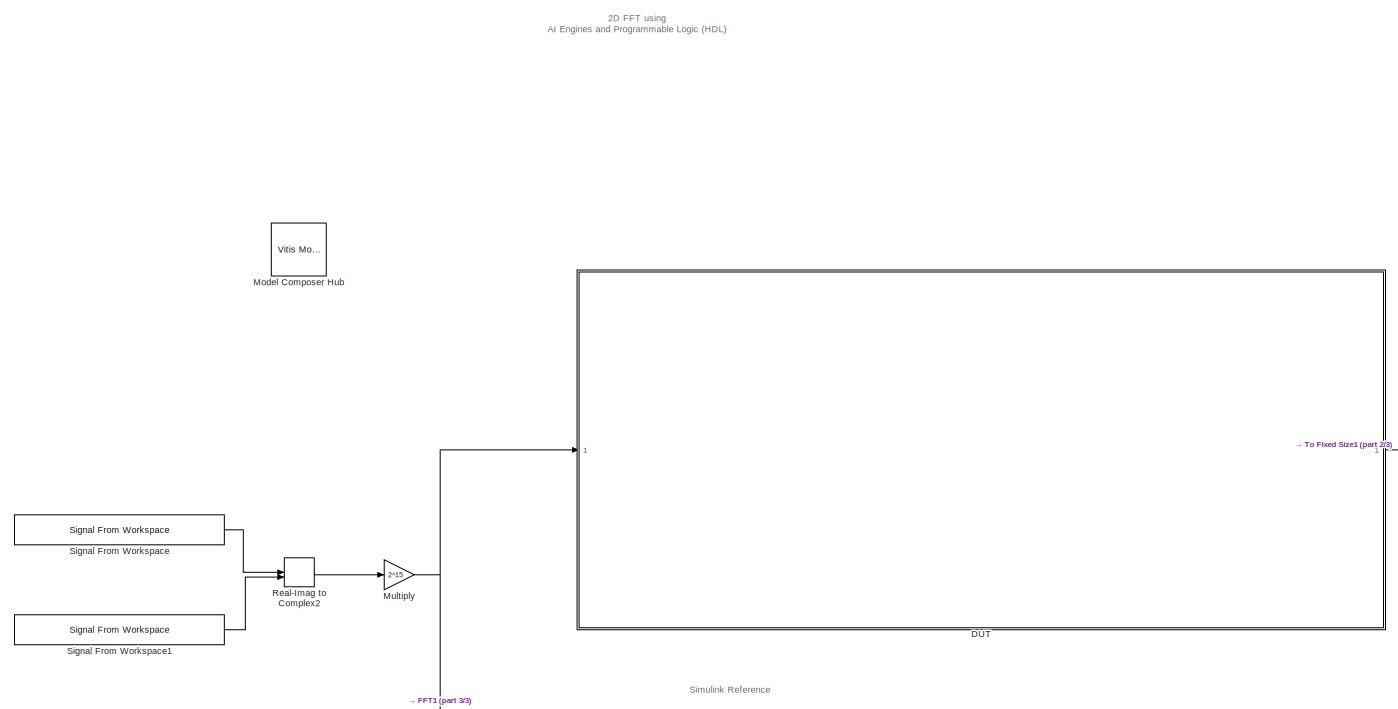
[diagram: root canvas - part 1/3, left side, full height]
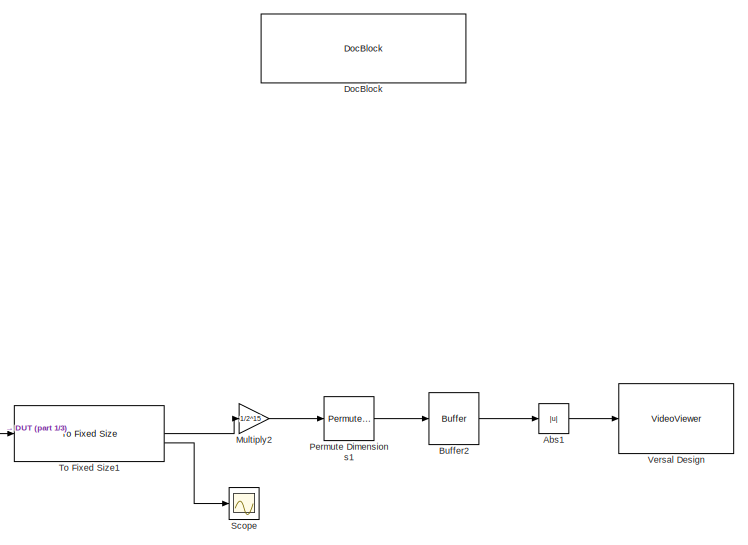
[diagram: root canvas - part 2/3, middle right region]
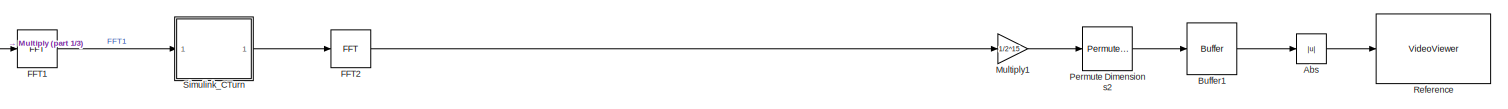
[diagram: root canvas - part 3/3, bottom center region]
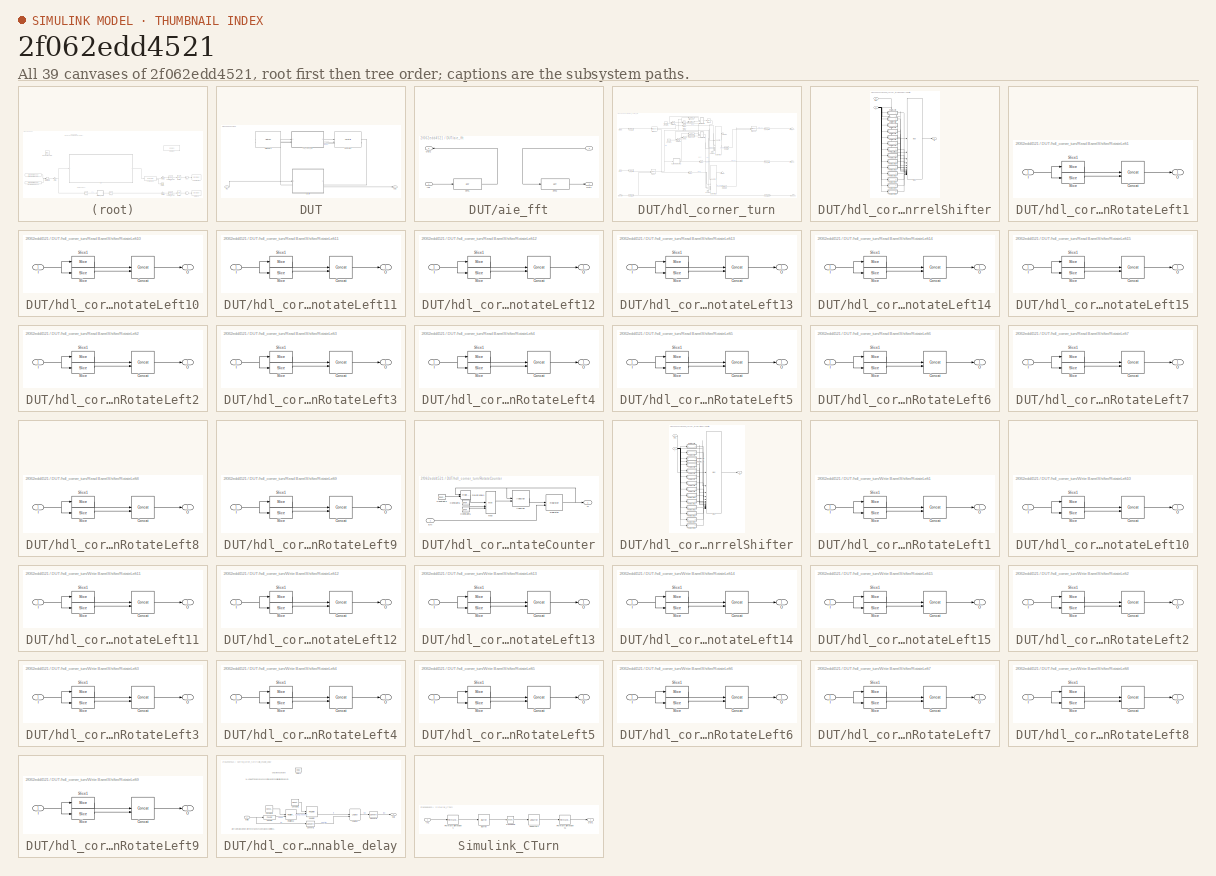
[diagram: thumbnail index - all 39 canvases of the model, root first then tree order]
MODEL slx_2f062edd4521
KIND model
CONFIG AbsTol = auto
CONFIG EnableMultiTasking = off
CONFIG FixedStep = auto
CONFIG InitFcn = xlEvaluateHDLBlocks('XMC_FFT2D_HDL_AIE')
CONFIG MaxStep = auto
CONFIG MinStep = auto
CONFIG PreLoadFcn = MRIDemo_PreloadFcn;\n\n% configure hardware specifics information\nclock_frequency = 150e6;\n\n% corner bender info\nclk = clock_frequency; %Hz\nTclk = 1/clk;\nL2M = 8; % L2M=log2(M)\nL2N = 8; % L2N=log2(N)\nM = 2^L2M;\nN = 2^L2N;\nSSR = 1;\n
CONFIG RelTol = 1e-3
CONFIG SampleTimeConstraint = Unconstrained
CONFIG SolverName = FixedStepDiscrete
CONFIG StartTime = 0.0
CONFIG StopTime = 256*256*2
BLOCK [Abs] Abs
  SaturateOnIntegerOverflow = off
BLOCK [Abs] Abs1
  SaturateOnIntegerOverflow = off
BLOCK [Buffer] Buffer1
  N = 256
  OutputFrames = off
BLOCK [Buffer] Buffer2
  N = 256
  OutputFrames = off
BLOCK [SubSystem] DUT
BLOCK [Reference] DUT/AIE to HDL1  REF=aieUtilities/AIE to HDL
  SourceBlock = aieUtilities/AIE to HDL
  SourceType = AIE to HDL
BLOCK [Reference] DUT/HDL to AIE1  REF=aieUtilities/HDL to AIE
  SourceBlock = aieUtilities/HDL to AIE
  SourceType = HDL to AIE
BLOCK [Inport] DUT/In1
BLOCK [Outport] DUT/Out1
BLOCK [SubSystem] DUT/aie_fft
  PortSchema = {"entries":[{"content":{"sides":[{"content":{"connectorIds":["Out2","In1"]},"type":"ConnectorPlacement.EquallySpacedRectSide","uuid":"ba116f73-e116-40b3-b2e5-304cba4df7e1"},{"content":{"connectorIds":["In2","Out1"],"side":"RIGHT"},"type":"ConnectorPlacement.EquallySpacedRectSide","uuid":"f8ace37c-ffb0-4f56-a1b3-7eeef7565cfd"},{"content":{"connectorIds":[],"side":"TOP"},"type":"ConnectorPlacement.E...<+253ch>
BLOCK [Inport] DUT/aie_fft/ 
  NameLocation = top
  Port = 2
BLOCK [Reference] DUT/aie_fft/FFT1  REF=aieDSP/FFT
  SourceBlock = aieDSP/FFT
  SourceType = FFT
BLOCK [Reference] DUT/aie_fft/FFT2  REF=aieDSP/FFT
  SourceBlock = aieDSP/FFT
  SourceType = FFT
BLOCK [Inport] DUT/aie_fft/In2
BLOCK [Outport] DUT/aie_fft/Out1
  NameLocation = top
  Port = 2
BLOCK [Outport] DUT/aie_fft/Out2
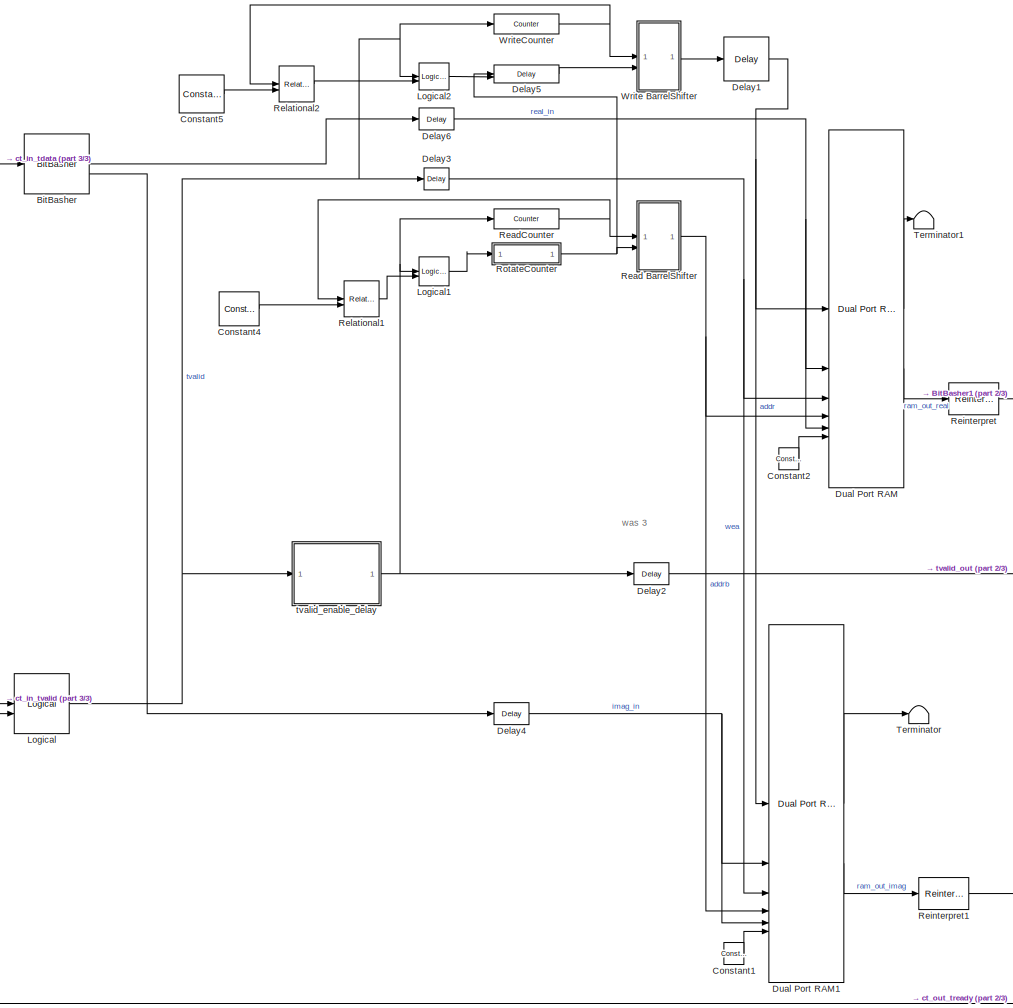
[diagram: DUT/hdl_corner_turn - part 1/3, center side, full height]
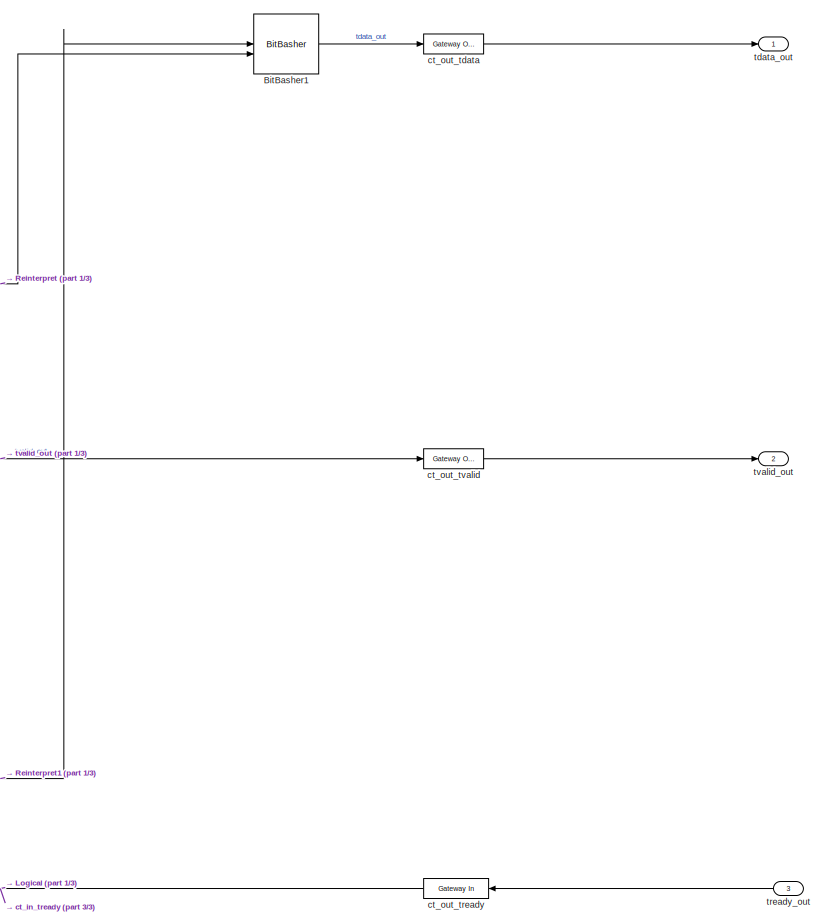
[diagram: DUT/hdl_corner_turn - part 2/3, right side, full height]
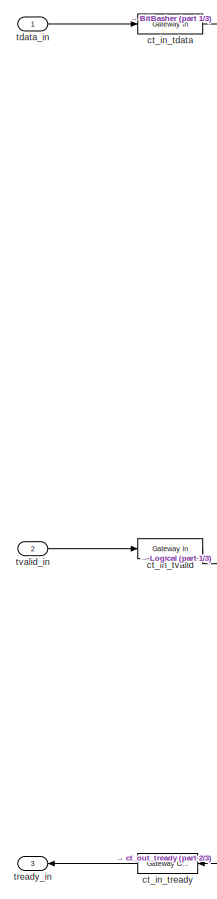
[diagram: DUT/hdl_corner_turn - part 3/3, left side, full height]
BLOCK [SubSystem] DUT/hdl_corner_turn
  PortSchema = {"entries":[{"content":{"sides":[{"content":{"connectorIds":["In1","In2","Out3"]},"type":"ConnectorPlacement.EquallySpacedRectSide","uuid":"096cfc4a-45cf-495e-9dad-5ec39c034de1"},{"content":{"connectorIds":["Out1","Out2","In3"],"side":"RIGHT"},"type":"ConnectorPlacement.EquallySpacedRectSide","uuid":"c2f58c53-17c1-4e0f-8fe6-4ca31b4ae7e7"},{"content":{"connectorIds":[],"side":"TOP"},"type":"Connect...<+266ch>
BLOCK [Reference] DUT/hdl_corner_turn/BitBasher  REF=hdlBasic/BitBasher
  SourceBlock = hdlBasic/BitBasher
  SourceType = BitBasher Block
BLOCK [Reference] DUT/hdl_corner_turn/BitBasher1  REF=hdlBasic/BitBasher
  SourceBlock = hdlBasic/BitBasher
  SourceType = BitBasher Block
BLOCK [Reference] DUT/hdl_corner_turn/Constant1  REF=hdlBasic/Constant
  SourceBlock = hdlBasic/Constant
  SourceType = Constant Block Block
BLOCK [Reference] DUT/hdl_corner_turn/Constant2  REF=hdlBasic/Constant
  SourceBlock = hdlBasic/Constant
  SourceType = Constant Block Block
BLOCK [Reference] DUT/hdl_corner_turn/Constant4  REF=hdlBasic/Constant
  SourceBlock = hdlBasic/Constant
  SourceType = Constant Block Block
BLOCK [Reference] DUT/hdl_corner_turn/Constant5  REF=hdlBasic/Constant
  SourceBlock = hdlBasic/Constant
  SourceType = Constant Block Block
BLOCK [Reference] DUT/hdl_corner_turn/Delay1  REF=hdlBasic/Delay
  SourceBlock = hdlBasic/Delay
  SourceType = Delay Block
BLOCK [Reference] DUT/hdl_corner_turn/Delay2  REF=hdlBasic/Delay
  SourceBlock = hdlBasic/Delay
  SourceType = Delay Block
BLOCK [Reference] DUT/hdl_corner_turn/Delay3  REF=hdlBasic/Delay
  SourceBlock = hdlBasic/Delay
  SourceType = Delay Block
BLOCK [Reference] DUT/hdl_corner_turn/Delay4  REF=hdlBasic/Delay
  SourceBlock = hdlBasic/Delay
  SourceType = Delay Block
BLOCK [Reference] DUT/hdl_corner_turn/Delay5  REF=hdlBasic/Delay
  SourceBlock = hdlBasic/Delay
  SourceType = Delay Block
BLOCK [Reference] DUT/hdl_corner_turn/Delay6  REF=hdlBasic/Delay
  SourceBlock = hdlBasic/Delay
  SourceType = Delay Block
BLOCK [Reference] DUT/hdl_corner_turn/Dual Port RAM  REF=hdlBasic/Dual Port RAM
  SourceBlock = hdlBasic/Dual Port RAM
  SourceType = Dual Port Random Access Memory Block
BLOCK [Reference] DUT/hdl_corner_turn/Dual Port RAM1  REF=hdlBasic/Dual Port RAM
  SourceBlock = hdlBasic/Dual Port RAM
  SourceType = Dual Port Random Access Memory Block
BLOCK [Reference] DUT/hdl_corner_turn/Logical  REF=hdlBasic/Logical
  SourceBlock = hdlBasic/Logical
  SourceType = Logical Block Block
BLOCK [Reference] DUT/hdl_corner_turn/Logical1  REF=hdlBasic/Logical
  SourceBlock = hdlBasic/Logical
  SourceType = Logical Block Block
BLOCK [Reference] DUT/hdl_corner_turn/Logical2  REF=hdlBasic/Logical
  SourceBlock = hdlBasic/Logical
  SourceType = Logical Block Block
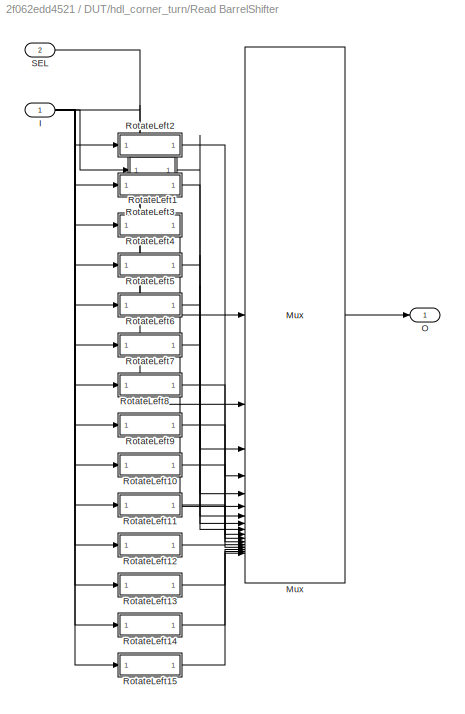
BLOCK [SubSystem] DUT/hdl_corner_turn/Read BarrelShifter
BLOCK [Inport] DUT/hdl_corner_turn/Read BarrelShifter/I
BLOCK [Reference] DUT/hdl_corner_turn/Read BarrelShifter/Mux  REF=hdlBasic/Mux
  SourceBlock = hdlBasic/Mux
  SourceType = Bus Multiplexer Block
BLOCK [Outport] DUT/hdl_corner_turn/Read BarrelShifter/O
BLOCK [SubSystem] DUT/hdl_corner_turn/Read BarrelShifter/RotateLeft1
BLOCK [Reference] DUT/hdl_corner_turn/Read BarrelShifter/RotateLeft1/Concat  REF=hdlBasic/Concat
  SourceBlock = hdlBasic/Concat
  SourceType = Bus Concatenator Block
BLOCK [Inport] DUT/hdl_corner_turn/Read BarrelShifter/RotateLeft1/I
BLOCK [Outport] DUT/hdl_corner_turn/Read BarrelShifter/RotateLeft1/O
BLOCK [Reference] DUT/hdl_corner_turn/Read BarrelShifter/RotateLeft1/Slice  REF=hdlBasic/Slice
  SourceBlock = hdlBasic/Slice
  SourceType = Bit Slice Extractor Block
BLOCK [Reference] DUT/hdl_corner_turn/Read BarrelShifter/RotateLeft1/Slice1  REF=hdlBasic/Slice
  SourceBlock = hdlBasic/Slice
  SourceType = Bit Slice Extractor Block
BLOCK [SubSystem] DUT/hdl_corner_turn/Read BarrelShifter/RotateLeft10
BLOCK [Reference] DUT/hdl_corner_turn/Read BarrelShifter/RotateLeft10/Concat  REF=hdlBasic/Concat
  SourceBlock = hdlBasic/Concat
  SourceType = Bus Concatenator Block
BLOCK [Inport] DUT/hdl_corner_turn/Read BarrelShifter/RotateLeft10/I
BLOCK [Outport] DUT/hdl_corner_turn/Read BarrelShifter/RotateLeft10/O
BLOCK [Reference] DUT/hdl_corner_turn/Read BarrelShifter/RotateLeft10/Slice  REF=hdlBasic/Slice
  SourceBlock = hdlBasic/Slice
  SourceType = Bit Slice Extractor Block
BLOCK [Reference] DUT/hdl_corner_turn/Read BarrelShifter/RotateLeft10/Slice1  REF=hdlBasic/Slice
  SourceBlock = hdlBasic/Slice
  SourceType = Bit Slice Extractor Block
BLOCK [SubSystem] DUT/hdl_corner_turn/Read BarrelShifter/RotateLeft11
BLOCK [Reference] DUT/hdl_corner_turn/Read BarrelShifter/RotateLeft11/Concat  REF=hdlBasic/Concat
  SourceBlock = hdlBasic/Concat
  SourceType = Bus Concatenator Block
BLOCK [Inport] DUT/hdl_corner_turn/Read BarrelShifter/RotateLeft11/I
BLOCK [Outport] DUT/hdl_corner_turn/Read BarrelShifter/RotateLeft11/O
BLOCK [Reference] DUT/hdl_corner_turn/Read BarrelShifter/RotateLeft11/Slice  REF=hdlBasic/Slice
  SourceBlock = hdlBasic/Slice
  SourceType = Bit Slice Extractor Block
BLOCK [Reference] DUT/hdl_corner_turn/Read BarrelShifter/RotateLeft11/Slice1  REF=hdlBasic/Slice
  SourceBlock = hdlBasic/Slice
  SourceType = Bit Slice Extractor Block
BLOCK [SubSystem] DUT/hdl_corner_turn/Read BarrelShifter/RotateLeft12
BLOCK [Reference] DUT/hdl_corner_turn/Read BarrelShifter/RotateLeft12/Concat  REF=hdlBasic/Concat
  SourceBlock = hdlBasic/Concat
  SourceType = Bus Concatenator Block
BLOCK [Inport] DUT/hdl_corner_turn/Read BarrelShifter/RotateLeft12/I
BLOCK [Outport] DUT/hdl_corner_turn/Read BarrelShifter/RotateLeft12/O
BLOCK [Reference] DUT/hdl_corner_turn/Read BarrelShifter/RotateLeft12/Slice  REF=hdlBasic/Slice
  SourceBlock = hdlBasic/Slice
  SourceType = Bit Slice Extractor Block
BLOCK [Reference] DUT/hdl_corner_turn/Read BarrelShifter/RotateLeft12/Slice1  REF=hdlBasic/Slice
  SourceBlock = hdlBasic/Slice
  SourceType = Bit Slice Extractor Block
BLOCK [SubSystem] DUT/hdl_corner_turn/Read BarrelShifter/RotateLeft13
BLOCK [Reference] DUT/hdl_corner_turn/Read BarrelShifter/RotateLeft13/Concat  REF=hdlBasic/Concat
  SourceBlock = hdlBasic/Concat
  SourceType = Bus Concatenator Block
BLOCK [Inport] DUT/hdl_corner_turn/Read BarrelShifter/RotateLeft13/I
BLOCK [Outport] DUT/hdl_corner_turn/Read BarrelShifter/RotateLeft13/O
BLOCK [Reference] DUT/hdl_corner_turn/Read BarrelShifter/RotateLeft13/Slice  REF=hdlBasic/Slice
  SourceBlock = hdlBasic/Slice
  SourceType = Bit Slice Extractor Block
BLOCK [Reference] DUT/hdl_corner_turn/Read BarrelShifter/RotateLeft13/Slice1  REF=hdlBasic/Slice
  SourceBlock = hdlBasic/Slice
  SourceType = Bit Slice Extractor Block
BLOCK [SubSystem] DUT/hdl_corner_turn/Read BarrelShifter/RotateLeft14
BLOCK [Reference] DUT/hdl_corner_turn/Read BarrelShifter/RotateLeft14/Concat  REF=hdlBasic/Concat
  SourceBlock = hdlBasic/Concat
  SourceType = Bus Concatenator Block
BLOCK [Inport] DUT/hdl_corner_turn/Read BarrelShifter/RotateLeft14/I
BLOCK [Outport] DUT/hdl_corner_turn/Read BarrelShifter/RotateLeft14/O
BLOCK [Reference] DUT/hdl_corner_turn/Read BarrelShifter/RotateLeft14/Slice  REF=hdlBasic/Slice
  SourceBlock = hdlBasic/Slice
  SourceType = Bit Slice Extractor Block
BLOCK [Reference] DUT/hdl_corner_turn/Read BarrelShifter/RotateLeft14/Slice1  REF=hdlBasic/Slice
  SourceBlock = hdlBasic/Slice
  SourceType = Bit Slice Extractor Block
BLOCK [SubSystem] DUT/hdl_corner_turn/Read BarrelShifter/RotateLeft15
BLOCK [Reference] DUT/hdl_corner_turn/Read BarrelShifter/RotateLeft15/Concat  REF=hdlBasic/Concat
  SourceBlock = hdlBasic/Concat
  SourceType = Bus Concatenator Block
BLOCK [Inport] DUT/hdl_corner_turn/Read BarrelShifter/RotateLeft15/I
BLOCK [Outport] DUT/hdl_corner_turn/Read BarrelShifter/RotateLeft15/O
BLOCK [Reference] DUT/hdl_corner_turn/Read BarrelShifter/RotateLeft15/Slice  REF=hdlBasic/Slice
  SourceBlock = hdlBasic/Slice
  SourceType = Bit Slice Extractor Block
BLOCK [Reference] DUT/hdl_corner_turn/Read BarrelShifter/RotateLeft15/Slice1  REF=hdlBasic/Slice
  SourceBlock = hdlBasic/Slice
  SourceType = Bit Slice Extractor Block
BLOCK [SubSystem] DUT/hdl_corner_turn/Read BarrelShifter/RotateLeft2
BLOCK [Reference] DUT/hdl_corner_turn/Read BarrelShifter/RotateLeft2/Concat  REF=hdlBasic/Concat
  SourceBlock = hdlBasic/Concat
  SourceType = Bus Concatenator Block
BLOCK [Inport] DUT/hdl_corner_turn/Read BarrelShifter/RotateLeft2/I
BLOCK [Outport] DUT/hdl_corner_turn/Read BarrelShifter/RotateLeft2/O
BLOCK [Reference] DUT/hdl_corner_turn/Read BarrelShifter/RotateLeft2/Slice  REF=hdlBasic/Slice
  SourceBlock = hdlBasic/Slice
  SourceType = Bit Slice Extractor Block
BLOCK [Reference] DUT/hdl_corner_turn/Read BarrelShifter/RotateLeft2/Slice1  REF=hdlBasic/Slice
  SourceBlock = hdlBasic/Slice
  SourceType = Bit Slice Extractor Block
BLOCK [SubSystem] DUT/hdl_corner_turn/Read BarrelShifter/RotateLeft3
BLOCK [Reference] DUT/hdl_corner_turn/Read BarrelShifter/RotateLeft3/Concat  REF=hdlBasic/Concat
  SourceBlock = hdlBasic/Concat
  SourceType = Bus Concatenator Block
BLOCK [Inport] DUT/hdl_corner_turn/Read BarrelShifter/RotateLeft3/I
BLOCK [Outport] DUT/hdl_corner_turn/Read BarrelShifter/RotateLeft3/O
BLOCK [Reference] DUT/hdl_corner_turn/Read BarrelShifter/RotateLeft3/Slice  REF=hdlBasic/Slice
  SourceBlock = hdlBasic/Slice
  SourceType = Bit Slice Extractor Block
BLOCK [Reference] DUT/hdl_corner_turn/Read BarrelShifter/RotateLeft3/Slice1  REF=hdlBasic/Slice
  SourceBlock = hdlBasic/Slice
  SourceType = Bit Slice Extractor Block
BLOCK [SubSystem] DUT/hdl_corner_turn/Read BarrelShifter/RotateLeft4
BLOCK [Reference] DUT/hdl_corner_turn/Read BarrelShifter/RotateLeft4/Concat  REF=hdlBasic/Concat
  SourceBlock = hdlBasic/Concat
  SourceType = Bus Concatenator Block
BLOCK [Inport] DUT/hdl_corner_turn/Read BarrelShifter/RotateLeft4/I
BLOCK [Outport] DUT/hdl_corner_turn/Read BarrelShifter/RotateLeft4/O
BLOCK [Reference] DUT/hdl_corner_turn/Read BarrelShifter/RotateLeft4/Slice  REF=hdlBasic/Slice
  SourceBlock = hdlBasic/Slice
  SourceType = Bit Slice Extractor Block
BLOCK [Reference] DUT/hdl_corner_turn/Read BarrelShifter/RotateLeft4/Slice1  REF=hdlBasic/Slice
  SourceBlock = hdlBasic/Slice
  SourceType = Bit Slice Extractor Block
BLOCK [SubSystem] DUT/hdl_corner_turn/Read BarrelShifter/RotateLeft5
BLOCK [Reference] DUT/hdl_corner_turn/Read BarrelShifter/RotateLeft5/Concat  REF=hdlBasic/Concat
  SourceBlock = hdlBasic/Concat
  SourceType = Bus Concatenator Block
BLOCK [Inport] DUT/hdl_corner_turn/Read BarrelShifter/RotateLeft5/I
BLOCK [Outport] DUT/hdl_corner_turn/Read BarrelShifter/RotateLeft5/O
BLOCK [Reference] DUT/hdl_corner_turn/Read BarrelShifter/RotateLeft5/Slice  REF=hdlBasic/Slice
  SourceBlock = hdlBasic/Slice
  SourceType = Bit Slice Extractor Block
BLOCK [Reference] DUT/hdl_corner_turn/Read BarrelShifter/RotateLeft5/Slice1  REF=hdlBasic/Slice
  SourceBlock = hdlBasic/Slice
  SourceType = Bit Slice Extractor Block
BLOCK [SubSystem] DUT/hdl_corner_turn/Read BarrelShifter/RotateLeft6
BLOCK [Reference] DUT/hdl_corner_turn/Read BarrelShifter/RotateLeft6/Concat  REF=hdlBasic/Concat
  SourceBlock = hdlBasic/Concat
  SourceType = Bus Concatenator Block
BLOCK [Inport] DUT/hdl_corner_turn/Read BarrelShifter/RotateLeft6/I
BLOCK [Outport] DUT/hdl_corner_turn/Read BarrelShifter/RotateLeft6/O
BLOCK [Reference] DUT/hdl_corner_turn/Read BarrelShifter/RotateLeft6/Slice  REF=hdlBasic/Slice
  SourceBlock = hdlBasic/Slice
  SourceType = Bit Slice Extractor Block
BLOCK [Reference] DUT/hdl_corner_turn/Read BarrelShifter/RotateLeft6/Slice1  REF=hdlBasic/Slice
  SourceBlock = hdlBasic/Slice
  SourceType = Bit Slice Extractor Block
BLOCK [SubSystem] DUT/hdl_corner_turn/Read BarrelShifter/RotateLeft7
BLOCK [Reference] DUT/hdl_corner_turn/Read BarrelShifter/RotateLeft7/Concat  REF=hdlBasic/Concat
  SourceBlock = hdlBasic/Concat
  SourceType = Bus Concatenator Block
BLOCK [Inport] DUT/hdl_corner_turn/Read BarrelShifter/RotateLeft7/I
BLOCK [Outport] DUT/hdl_corner_turn/Read BarrelShifter/RotateLeft7/O
BLOCK [Reference] DUT/hdl_corner_turn/Read BarrelShifter/RotateLeft7/Slice  REF=hdlBasic/Slice
  SourceBlock = hdlBasic/Slice
  SourceType = Bit Slice Extractor Block
BLOCK [Reference] DUT/hdl_corner_turn/Read BarrelShifter/RotateLeft7/Slice1  REF=hdlBasic/Slice
  SourceBlock = hdlBasic/Slice
  SourceType = Bit Slice Extractor Block
BLOCK [SubSystem] DUT/hdl_corner_turn/Read BarrelShifter/RotateLeft8
BLOCK [Reference] DUT/hdl_corner_turn/Read BarrelShifter/RotateLeft8/Concat  REF=hdlBasic/Concat
  SourceBlock = hdlBasic/Concat
  SourceType = Bus Concatenator Block
BLOCK [Inport] DUT/hdl_corner_turn/Read BarrelShifter/RotateLeft8/I
BLOCK [Outport] DUT/hdl_corner_turn/Read BarrelShifter/RotateLeft8/O
BLOCK [Reference] DUT/hdl_corner_turn/Read BarrelShifter/RotateLeft8/Slice  REF=hdlBasic/Slice
  SourceBlock = hdlBasic/Slice
  SourceType = Bit Slice Extractor Block
BLOCK [Reference] DUT/hdl_corner_turn/Read BarrelShifter/RotateLeft8/Slice1  REF=hdlBasic/Slice
  SourceBlock = hdlBasic/Slice
  SourceType = Bit Slice Extractor Block
BLOCK [SubSystem] DUT/hdl_corner_turn/Read BarrelShifter/RotateLeft9
BLOCK [Reference] DUT/hdl_corner_turn/Read BarrelShifter/RotateLeft9/Concat  REF=hdlBasic/Concat
  SourceBlock = hdlBasic/Concat
  SourceType = Bus Concatenator Block
BLOCK [Inport] DUT/hdl_corner_turn/Read BarrelShifter/RotateLeft9/I
BLOCK [Outport] DUT/hdl_corner_turn/Read BarrelShifter/RotateLeft9/O
BLOCK [Reference] DUT/hdl_corner_turn/Read BarrelShifter/RotateLeft9/Slice  REF=hdlBasic/Slice
  SourceBlock = hdlBasic/Slice
  SourceType = Bit Slice Extractor Block
BLOCK [Reference] DUT/hdl_corner_turn/Read BarrelShifter/RotateLeft9/Slice1  REF=hdlBasic/Slice
  SourceBlock = hdlBasic/Slice
  SourceType = Bit Slice Extractor Block
BLOCK [Inport] DUT/hdl_corner_turn/Read BarrelShifter/SEL
  Port = 2
BLOCK [Reference] DUT/hdl_corner_turn/ReadCounter  REF=hdlBasic/Counter
  SourceBlock = hdlBasic/Counter
  SourceType = Counter Block
BLOCK [Reference] DUT/hdl_corner_turn/Reinterpret  REF=hdlBasic/Reinterpret
  SourceBlock = hdlBasic/Reinterpret
  SourceType = Type Reinterpreter Block
BLOCK [Reference] DUT/hdl_corner_turn/Reinterpret1  REF=hdlBasic/Reinterpret
  SourceBlock = hdlBasic/Reinterpret
  SourceType = Type Reinterpreter Block
BLOCK [Reference] DUT/hdl_corner_turn/Relational1  REF=hdlBasic/Relational
  SourceBlock = hdlBasic/Relational
  SourceType = Arithmetic Relational Operator Block
BLOCK [Reference] DUT/hdl_corner_turn/Relational2  REF=hdlBasic/Relational
  SourceBlock = hdlBasic/Relational
  SourceType = Arithmetic Relational Operator Block
BLOCK [SubSystem] DUT/hdl_corner_turn/RotateCounter
BLOCK [Reference] DUT/hdl_corner_turn/RotateCounter/AddSub  REF=hdlBasic/AddSub
  SourceBlock = hdlBasic/AddSub
  SourceType = Adder/Subtracter Block
BLOCK [Reference] DUT/hdl_corner_turn/RotateCounter/Constant1  REF=hdlBasic/Constant
  SourceBlock = hdlBasic/Constant
  SourceType = Constant Block Block
BLOCK [Reference] DUT/hdl_corner_turn/RotateCounter/Constant4  REF=hdlBasic/Constant
  SourceBlock = hdlBasic/Constant
  SourceType = Constant Block Block
BLOCK [Reference] DUT/hdl_corner_turn/RotateCounter/Constant5  REF=hdlBasic/Constant
  SourceBlock = hdlBasic/Constant
  SourceType = Constant Block Block
BLOCK [Inport] DUT/hdl_corner_turn/RotateCounter/EN
BLOCK [Reference] DUT/hdl_corner_turn/RotateCounter/Mux  REF=hdlBasic/Mux
  SourceBlock = hdlBasic/Mux
  SourceType = Bus Multiplexer Block
BLOCK [Outport] DUT/hdl_corner_turn/RotateCounter/O
BLOCK [Reference] DUT/hdl_corner_turn/RotateCounter/Register  REF=hdlBasic/Register
  SourceBlock = hdlBasic/Register
  SourceType = Register Block
BLOCK [Reference] DUT/hdl_corner_turn/RotateCounter/Relational1  REF=hdlBasic/Relational
  SourceBlock = hdlBasic/Relational
  SourceType = Arithmetic Relational Operator Block
BLOCK [Terminator] DUT/hdl_corner_turn/Terminator
BLOCK [Terminator] DUT/hdl_corner_turn/Terminator1
BLOCK [SubSystem] DUT/hdl_corner_turn/Write BarrelShifter
BLOCK [Inport] DUT/hdl_corner_turn/Write BarrelShifter/I
BLOCK [Reference] DUT/hdl_corner_turn/Write BarrelShifter/Mux  REF=hdlBasic/Mux
  SourceBlock = hdlBasic/Mux
  SourceType = Bus Multiplexer Block
BLOCK [Outport] DUT/hdl_corner_turn/Write BarrelShifter/O
BLOCK [SubSystem] DUT/hdl_corner_turn/Write BarrelShifter/RotateLeft1
BLOCK [Reference] DUT/hdl_corner_turn/Write BarrelShifter/RotateLeft1/Concat  REF=hdlBasic/Concat
  SourceBlock = hdlBasic/Concat
  SourceType = Bus Concatenator Block
BLOCK [Inport] DUT/hdl_corner_turn/Write BarrelShifter/RotateLeft1/I
BLOCK [Outport] DUT/hdl_corner_turn/Write BarrelShifter/RotateLeft1/O
BLOCK [Reference] DUT/hdl_corner_turn/Write BarrelShifter/RotateLeft1/Slice  REF=hdlBasic/Slice
  SourceBlock = hdlBasic/Slice
  SourceType = Bit Slice Extractor Block
BLOCK [Reference] DUT/hdl_corner_turn/Write BarrelShifter/RotateLeft1/Slice1  REF=hdlBasic/Slice
  SourceBlock = hdlBasic/Slice
  SourceType = Bit Slice Extractor Block
BLOCK [SubSystem] DUT/hdl_corner_turn/Write BarrelShifter/RotateLeft10
BLOCK [Reference] DUT/hdl_corner_turn/Write BarrelShifter/RotateLeft10/Concat  REF=hdlBasic/Concat
  SourceBlock = hdlBasic/Concat
  SourceType = Bus Concatenator Block
BLOCK [Inport] DUT/hdl_corner_turn/Write BarrelShifter/RotateLeft10/I
BLOCK [Outport] DUT/hdl_corner_turn/Write BarrelShifter/RotateLeft10/O
BLOCK [Reference] DUT/hdl_corner_turn/Write BarrelShifter/RotateLeft10/Slice  REF=hdlBasic/Slice
  SourceBlock = hdlBasic/Slice
  SourceType = Bit Slice Extractor Block
BLOCK [Reference] DUT/hdl_corner_turn/Write BarrelShifter/RotateLeft10/Slice1  REF=hdlBasic/Slice
  SourceBlock = hdlBasic/Slice
  SourceType = Bit Slice Extractor Block
BLOCK [SubSystem] DUT/hdl_corner_turn/Write BarrelShifter/RotateLeft11
BLOCK [Reference] DUT/hdl_corner_turn/Write BarrelShifter/RotateLeft11/Concat  REF=hdlBasic/Concat
  SourceBlock = hdlBasic/Concat
  SourceType = Bus Concatenator Block
BLOCK [Inport] DUT/hdl_corner_turn/Write BarrelShifter/RotateLeft11/I
BLOCK [Outport] DUT/hdl_corner_turn/Write BarrelShifter/RotateLeft11/O
BLOCK [Reference] DUT/hdl_corner_turn/Write BarrelShifter/RotateLeft11/Slice  REF=hdlBasic/Slice
  SourceBlock = hdlBasic/Slice
  SourceType = Bit Slice Extractor Block
BLOCK [Reference] DUT/hdl_corner_turn/Write BarrelShifter/RotateLeft11/Slice1  REF=hdlBasic/Slice
  SourceBlock = hdlBasic/Slice
  SourceType = Bit Slice Extractor Block
BLOCK [SubSystem] DUT/hdl_corner_turn/Write BarrelShifter/RotateLeft12
BLOCK [Reference] DUT/hdl_corner_turn/Write BarrelShifter/RotateLeft12/Concat  REF=hdlBasic/Concat
  SourceBlock = hdlBasic/Concat
  SourceType = Bus Concatenator Block
BLOCK [Inport] DUT/hdl_corner_turn/Write BarrelShifter/RotateLeft12/I
BLOCK [Outport] DUT/hdl_corner_turn/Write BarrelShifter/RotateLeft12/O
BLOCK [Reference] DUT/hdl_corner_turn/Write BarrelShifter/RotateLeft12/Slice  REF=hdlBasic/Slice
  SourceBlock = hdlBasic/Slice
  SourceType = Bit Slice Extractor Block
BLOCK [Reference] DUT/hdl_corner_turn/Write BarrelShifter/RotateLeft12/Slice1  REF=hdlBasic/Slice
  SourceBlock = hdlBasic/Slice
  SourceType = Bit Slice Extractor Block
BLOCK [SubSystem] DUT/hdl_corner_turn/Write BarrelShifter/RotateLeft13
BLOCK [Reference] DUT/hdl_corner_turn/Write BarrelShifter/RotateLeft13/Concat  REF=hdlBasic/Concat
  SourceBlock = hdlBasic/Concat
  SourceType = Bus Concatenator Block
BLOCK [Inport] DUT/hdl_corner_turn/Write BarrelShifter/RotateLeft13/I
BLOCK [Outport] DUT/hdl_corner_turn/Write BarrelShifter/RotateLeft13/O
BLOCK [Reference] DUT/hdl_corner_turn/Write BarrelShifter/RotateLeft13/Slice  REF=hdlBasic/Slice
  SourceBlock = hdlBasic/Slice
  SourceType = Bit Slice Extractor Block
BLOCK [Reference] DUT/hdl_corner_turn/Write BarrelShifter/RotateLeft13/Slice1  REF=hdlBasic/Slice
  SourceBlock = hdlBasic/Slice
  SourceType = Bit Slice Extractor Block
BLOCK [SubSystem] DUT/hdl_corner_turn/Write BarrelShifter/RotateLeft14
BLOCK [Reference] DUT/hdl_corner_turn/Write BarrelShifter/RotateLeft14/Concat  REF=hdlBasic/Concat
  SourceBlock = hdlBasic/Concat
  SourceType = Bus Concatenator Block
BLOCK [Inport] DUT/hdl_corner_turn/Write BarrelShifter/RotateLeft14/I
BLOCK [Outport] DUT/hdl_corner_turn/Write BarrelShifter/RotateLeft14/O
BLOCK [Reference] DUT/hdl_corner_turn/Write BarrelShifter/RotateLeft14/Slice  REF=hdlBasic/Slice
  SourceBlock = hdlBasic/Slice
  SourceType = Bit Slice Extractor Block
BLOCK [Reference] DUT/hdl_corner_turn/Write BarrelShifter/RotateLeft14/Slice1  REF=hdlBasic/Slice
  SourceBlock = hdlBasic/Slice
  SourceType = Bit Slice Extractor Block
BLOCK [SubSystem] DUT/hdl_corner_turn/Write BarrelShifter/RotateLeft15
BLOCK [Reference] DUT/hdl_corner_turn/Write BarrelShifter/RotateLeft15/Concat  REF=hdlBasic/Concat
  SourceBlock = hdlBasic/Concat
  SourceType = Bus Concatenator Block
BLOCK [Inport] DUT/hdl_corner_turn/Write BarrelShifter/RotateLeft15/I
BLOCK [Outport] DUT/hdl_corner_turn/Write BarrelShifter/RotateLeft15/O
BLOCK [Reference] DUT/hdl_corner_turn/Write BarrelShifter/RotateLeft15/Slice  REF=hdlBasic/Slice
  SourceBlock = hdlBasic/Slice
  SourceType = Bit Slice Extractor Block
BLOCK [Reference] DUT/hdl_corner_turn/Write BarrelShifter/RotateLeft15/Slice1  REF=hdlBasic/Slice
  SourceBlock = hdlBasic/Slice
  SourceType = Bit Slice Extractor Block
BLOCK [SubSystem] DUT/hdl_corner_turn/Write BarrelShifter/RotateLeft2
BLOCK [Reference] DUT/hdl_corner_turn/Write BarrelShifter/RotateLeft2/Concat  REF=hdlBasic/Concat
  SourceBlock = hdlBasic/Concat
  SourceType = Bus Concatenator Block
BLOCK [Inport] DUT/hdl_corner_turn/Write BarrelShifter/RotateLeft2/I
BLOCK [Outport] DUT/hdl_corner_turn/Write BarrelShifter/RotateLeft2/O
BLOCK [Reference] DUT/hdl_corner_turn/Write BarrelShifter/RotateLeft2/Slice  REF=hdlBasic/Slice
  SourceBlock = hdlBasic/Slice
  SourceType = Bit Slice Extractor Block
BLOCK [Reference] DUT/hdl_corner_turn/Write BarrelShifter/RotateLeft2/Slice1  REF=hdlBasic/Slice
  SourceBlock = hdlBasic/Slice
  SourceType = Bit Slice Extractor Block
BLOCK [SubSystem] DUT/hdl_corner_turn/Write BarrelShifter/RotateLeft3
BLOCK [Reference] DUT/hdl_corner_turn/Write BarrelShifter/RotateLeft3/Concat  REF=hdlBasic/Concat
  SourceBlock = hdlBasic/Concat
  SourceType = Bus Concatenator Block
BLOCK [Inport] DUT/hdl_corner_turn/Write BarrelShifter/RotateLeft3/I
BLOCK [Outport] DUT/hdl_corner_turn/Write BarrelShifter/RotateLeft3/O
BLOCK [Reference] DUT/hdl_corner_turn/Write BarrelShifter/RotateLeft3/Slice  REF=hdlBasic/Slice
  SourceBlock = hdlBasic/Slice
  SourceType = Bit Slice Extractor Block
BLOCK [Reference] DUT/hdl_corner_turn/Write BarrelShifter/RotateLeft3/Slice1  REF=hdlBasic/Slice
  SourceBlock = hdlBasic/Slice
  SourceType = Bit Slice Extractor Block
BLOCK [SubSystem] DUT/hdl_corner_turn/Write BarrelShifter/RotateLeft4
BLOCK [Reference] DUT/hdl_corner_turn/Write BarrelShifter/RotateLeft4/Concat  REF=hdlBasic/Concat
  SourceBlock = hdlBasic/Concat
  SourceType = Bus Concatenator Block
BLOCK [Inport] DUT/hdl_corner_turn/Write BarrelShifter/RotateLeft4/I
BLOCK [Outport] DUT/hdl_corner_turn/Write BarrelShifter/RotateLeft4/O
BLOCK [Reference] DUT/hdl_corner_turn/Write BarrelShifter/RotateLeft4/Slice  REF=hdlBasic/Slice
  SourceBlock = hdlBasic/Slice
  SourceType = Bit Slice Extractor Block
BLOCK [Reference] DUT/hdl_corner_turn/Write BarrelShifter/RotateLeft4/Slice1  REF=hdlBasic/Slice
  SourceBlock = hdlBasic/Slice
  SourceType = Bit Slice Extractor Block
BLOCK [SubSystem] DUT/hdl_corner_turn/Write BarrelShifter/RotateLeft5
BLOCK [Reference] DUT/hdl_corner_turn/Write BarrelShifter/RotateLeft5/Concat  REF=hdlBasic/Concat
  SourceBlock = hdlBasic/Concat
  SourceType = Bus Concatenator Block
BLOCK [Inport] DUT/hdl_corner_turn/Write BarrelShifter/RotateLeft5/I
BLOCK [Outport] DUT/hdl_corner_turn/Write BarrelShifter/RotateLeft5/O
BLOCK [Reference] DUT/hdl_corner_turn/Write BarrelShifter/RotateLeft5/Slice  REF=hdlBasic/Slice
  SourceBlock = hdlBasic/Slice
  SourceType = Bit Slice Extractor Block
BLOCK [Reference] DUT/hdl_corner_turn/Write BarrelShifter/RotateLeft5/Slice1  REF=hdlBasic/Slice
  SourceBlock = hdlBasic/Slice
  SourceType = Bit Slice Extractor Block
BLOCK [SubSystem] DUT/hdl_corner_turn/Write BarrelShifter/RotateLeft6
BLOCK [Reference] DUT/hdl_corner_turn/Write BarrelShifter/RotateLeft6/Concat  REF=hdlBasic/Concat
  SourceBlock = hdlBasic/Concat
  SourceType = Bus Concatenator Block
BLOCK [Inport] DUT/hdl_corner_turn/Write BarrelShifter/RotateLeft6/I
BLOCK [Outport] DUT/hdl_corner_turn/Write BarrelShifter/RotateLeft6/O
BLOCK [Reference] DUT/hdl_corner_turn/Write BarrelShifter/RotateLeft6/Slice  REF=hdlBasic/Slice
  SourceBlock = hdlBasic/Slice
  SourceType = Bit Slice Extractor Block
BLOCK [Reference] DUT/hdl_corner_turn/Write BarrelShifter/RotateLeft6/Slice1  REF=hdlBasic/Slice
  SourceBlock = hdlBasic/Slice
  SourceType = Bit Slice Extractor Block
BLOCK [SubSystem] DUT/hdl_corner_turn/Write BarrelShifter/RotateLeft7
BLOCK [Reference] DUT/hdl_corner_turn/Write BarrelShifter/RotateLeft7/Concat  REF=hdlBasic/Concat
  SourceBlock = hdlBasic/Concat
  SourceType = Bus Concatenator Block
BLOCK [Inport] DUT/hdl_corner_turn/Write BarrelShifter/RotateLeft7/I
BLOCK [Outport] DUT/hdl_corner_turn/Write BarrelShifter/RotateLeft7/O
BLOCK [Reference] DUT/hdl_corner_turn/Write BarrelShifter/RotateLeft7/Slice  REF=hdlBasic/Slice
  SourceBlock = hdlBasic/Slice
  SourceType = Bit Slice Extractor Block
BLOCK [Reference] DUT/hdl_corner_turn/Write BarrelShifter/RotateLeft7/Slice1  REF=hdlBasic/Slice
  SourceBlock = hdlBasic/Slice
  SourceType = Bit Slice Extractor Block
BLOCK [SubSystem] DUT/hdl_corner_turn/Write BarrelShifter/RotateLeft8
BLOCK [Reference] DUT/hdl_corner_turn/Write BarrelShifter/RotateLeft8/Concat  REF=hdlBasic/Concat
  SourceBlock = hdlBasic/Concat
  SourceType = Bus Concatenator Block
BLOCK [Inport] DUT/hdl_corner_turn/Write BarrelShifter/RotateLeft8/I
BLOCK [Outport] DUT/hdl_corner_turn/Write BarrelShifter/RotateLeft8/O
BLOCK [Reference] DUT/hdl_corner_turn/Write BarrelShifter/RotateLeft8/Slice  REF=hdlBasic/Slice
  SourceBlock = hdlBasic/Slice
  SourceType = Bit Slice Extractor Block
BLOCK [Reference] DUT/hdl_corner_turn/Write BarrelShifter/RotateLeft8/Slice1  REF=hdlBasic/Slice
  SourceBlock = hdlBasic/Slice
  SourceType = Bit Slice Extractor Block
BLOCK [SubSystem] DUT/hdl_corner_turn/Write BarrelShifter/RotateLeft9
BLOCK [Reference] DUT/hdl_corner_turn/Write BarrelShifter/RotateLeft9/Concat  REF=hdlBasic/Concat
  SourceBlock = hdlBasic/Concat
  SourceType = Bus Concatenator Block
BLOCK [Inport] DUT/hdl_corner_turn/Write BarrelShifter/RotateLeft9/I
BLOCK [Outport] DUT/hdl_corner_turn/Write BarrelShifter/RotateLeft9/O
BLOCK [Reference] DUT/hdl_corner_turn/Write BarrelShifter/RotateLeft9/Slice  REF=hdlBasic/Slice
  SourceBlock = hdlBasic/Slice
  SourceType = Bit Slice Extractor Block
BLOCK [Reference] DUT/hdl_corner_turn/Write BarrelShifter/RotateLeft9/Slice1  REF=hdlBasic/Slice
  SourceBlock = hdlBasic/Slice
  SourceType = Bit Slice Extractor Block
BLOCK [Inport] DUT/hdl_corner_turn/Write BarrelShifter/SEL
  Port = 2
BLOCK [Reference] DUT/hdl_corner_turn/WriteCounter  REF=hdlBasic/Counter
  SourceBlock = hdlBasic/Counter
  SourceType = Counter Block
BLOCK [Reference] DUT/hdl_corner_turn/ct_in_tdata  REF=hdlBasic/Gateway In
  SourceBlock = hdlBasic/Gateway In
  SourceType = Gateway In Block
BLOCK [Reference] DUT/hdl_corner_turn/ct_in_tready  REF=hdlBasic/Gateway Out
  SourceBlock = hdlBasic/Gateway Out
  SourceType = Gateway Out Block
BLOCK [Reference] DUT/hdl_corner_turn/ct_in_tvalid  REF=hdlBasic/Gateway In
  SourceBlock = hdlBasic/Gateway In
  SourceType = Gateway In Block
BLOCK [Reference] DUT/hdl_corner_turn/ct_out_tdata  REF=hdlBasic/Gateway Out
  SourceBlock = hdlBasic/Gateway Out
  SourceType = Gateway Out Block
BLOCK [Reference] DUT/hdl_corner_turn/ct_out_tready  REF=hdlBasic/Gateway In
  SourceBlock = hdlBasic/Gateway In
  SourceType = Gateway In Block
BLOCK [Reference] DUT/hdl_corner_turn/ct_out_tvalid  REF=hdlBasic/Gateway Out
  SourceBlock = hdlBasic/Gateway Out
  SourceType = Gateway Out Block
BLOCK [Inport] DUT/hdl_corner_turn/tdata_in
BLOCK [Outport] DUT/hdl_corner_turn/tdata_out
BLOCK [Outport] DUT/hdl_corner_turn/tready_in
  NameLocation = top
  Port = 3
BLOCK [Inport] DUT/hdl_corner_turn/tready_out
  NameLocation = top
  Port = 3
BLOCK [SubSystem] DUT/hdl_corner_turn/tvalid_enable_delay
BLOCK [Reference] DUT/hdl_corner_turn/tvalid_enable_delay/Constant1  REF=hdlBasic/Constant
  SourceBlock = hdlBasic/Constant
  SourceType = Constant Block Block
BLOCK [Reference] DUT/hdl_corner_turn/tvalid_enable_delay/Constant3  REF=hdlBasic/Constant
  SourceBlock = hdlBasic/Constant
  SourceType = Constant Block Block
BLOCK [Reference] DUT/hdl_corner_turn/tvalid_enable_delay/Convert1  REF=hdlBasic/Convert
  SourceBlock = hdlBasic/Convert
  SourceType = Type Converter Block
BLOCK [Reference] DUT/hdl_corner_turn/tvalid_enable_delay/Convert2  REF=hdlBasic/Convert
  SourceBlock = hdlBasic/Convert
  SourceType = Type Converter Block
BLOCK [Reference] DUT/hdl_corner_turn/tvalid_enable_delay/Counter  REF=hdlBasic/Counter
  SourceBlock = hdlBasic/Counter
  SourceType = Counter Block
BLOCK [Reference] DUT/hdl_corner_turn/tvalid_enable_delay/Delay4  REF=hdlBasic/Delay
  Commented = on
  SourceBlock = hdlBasic/Delay
  SourceType = Delay Block
BLOCK [Reference] DUT/hdl_corner_turn/tvalid_enable_delay/Logical  REF=hdlBasic/Logical
  SourceBlock = hdlBasic/Logical
  SourceType = Logical Block Block
BLOCK [Outport] DUT/hdl_corner_turn/tvalid_enable_delay/Out1
BLOCK [Reference] DUT/hdl_corner_turn/tvalid_enable_delay/Register  REF=hdlBasic/Register
  SourceBlock = hdlBasic/Register
  SourceType = Register Block
BLOCK [Reference] DUT/hdl_corner_turn/tvalid_enable_delay/Relational  REF=hdlBasic/Relational
  SourceBlock = hdlBasic/Relational
  SourceType = Arithmetic Relational Operator Block
BLOCK [Inport] DUT/hdl_corner_turn/tvalid_enable_delay/tvalid
BLOCK [Inport] DUT/hdl_corner_turn/tvalid_in
  Port = 2
BLOCK [Outport] DUT/hdl_corner_turn/tvalid_out
  Port = 2
BLOCK [Reference] DocBlock  REF=simulink/Model-Wide
Utilities/DocBlock
  SourceBlock = simulink/Model-Wide\nUtilities/DocBlock
  SourceType = DocBlock
  UserDataPersistent = on
BLOCK [Reference] FFT1  REF=dspxfrm3/FFT
  SourceBlock = dspxfrm3/FFT
  SourceType = FFT
BLOCK [Reference] FFT2  REF=dspxfrm3/FFT
  SourceBlock = dspxfrm3/FFT
  SourceType = FFT
BLOCK [Reference] Model Composer Hub  REF=vmcUtilities/Vitis Model Composer Hub
  SourceBlock = vmcUtilities/Vitis Model Composer Hub
  SourceType = VMC Hub
  Tag = genX
  UserDataPersistent = on
BLOCK [Gain] Multiply
  Gain = 2^15
  OutDataTypeStr = int16
BLOCK [Gain] Multiply1
  Gain = 1/2^15
  OutDataTypeStr = single
BLOCK [Gain] Multiply2
  Gain = 1/2^15
  OutDataTypeStr = single
BLOCK [PermuteDimensions] Permute Dimensions1
BLOCK [PermuteDimensions] Permute Dimensions2
BLOCK [RealImagToComplex] Real-Imag to Complex2
BLOCK [VideoViewer] Reference
  Description = Simulink MRI Display
  FigPos = [1133 905 574 478]
  ScopeSpecificationString = vipscopes.VideoViewerScopeCfg('CurrentConfiguration', extmgr.ConfigurationSet(extmgr.Configuration('Core','General UI',true),extmgr.Configuration('Core','Source UI',true),extmgr.Configuration('Sources','WiredSimulink',true),extmgr.Configuration('Visuals','Video',true),extmgr.Configuration('Tools','Image Navigation Tools',true,'Magnification',1.70625,'FitToView',true),extmgr.Configuration('Tools','...<+117ch>
  colormapValue = gray(256)
BLOCK [Scope] Scope
  Floating = off
  NumInputPorts = 1
  ScopeSpecificationString = Simulink.scopes.TimeScopeBlockCfg('CurrentConfiguration', extmgr.ConfigurationSet(extmgr.Configuration('Core','General UI',true,'DisplayFullSourceName',false,'ShowMainToolbar',true),extmgr.Configuration('Sources','WiredSimulink',true,'DataLogging',false,'DataLoggingVariableName','ScopeData','DataLoggingLimitDataPoints',false,'DataLoggingMaxPoints','5000','DataLoggingDecimateData',false,'DataLoggin...<+1534ch>
BLOCK [Reference] Signal From Workspace  REF=dspsrcs4/Signal From
Workspace
  SourceBlock = dspsrcs4/Signal From\nWorkspace
  SourceType = Signal From Workspace
BLOCK [Reference] Signal From Workspace1  REF=dspsrcs4/Signal From
Workspace
  SourceBlock = dspsrcs4/Signal From\nWorkspace
  SourceType = Signal From Workspace
BLOCK [SubSystem] Simulink_CTurn
BLOCK [Buffer] Simulink_CTurn/Buffer
  N = 256
  OutputFrames = off
BLOCK [Inport] Simulink_CTurn/In1
BLOCK [Outport] Simulink_CTurn/Out1
  VectorParamsAs1DForOutWhenUnconnected = off
BLOCK [PermuteDimensions] Simulink_CTurn/Permute Dimensions
BLOCK [PermuteDimensions] Simulink_CTurn/Permute Dimensions1
BLOCK [Math] Simulink_CTurn/Transpose
  Operator = transpose
  SignedPower = on
BLOCK [Unbuffer] Simulink_CTurn/Unbuffer1
BLOCK [Reference] To Fixed Size1  REF=aieUtilities/To Fixed Size
  SourceBlock = aieUtilities/To Fixed Size
  SourceType = To Fixed Size
BLOCK [VideoViewer] Versal Design
  Description = Simulink MRI Display
  FigPos = [1062 805 703 270]
  ScopeSpecificationString = vipscopes.VideoViewerScopeCfg('CurrentConfiguration', extmgr.ConfigurationSet(extmgr.Configuration('Core','General UI',true),extmgr.Configuration('Core','Source UI',true),extmgr.Configuration('Sources','WiredSimulink',true),extmgr.Configuration('Visuals','Video',true),extmgr.Configuration('Tools','Image Navigation Tools',true,'Magnification',1.70625,'FitToView',true),extmgr.Configuration('Tools','...<+117ch>
  colormapValue = gray(256)
ANNOTATION (root): 2D FFT using AI Engines and Programmable Logic (HDL)
ANNOTATION (root): Simulink Reference
ANNOTATION DUT/hdl_corner_turn: was 3
ANNOTATION DUT/hdl_corner_turn/tvalid_enable_delay: WARNING: This block is a one shot! Design for test will not like this block; if you add a reset to the system you need to add a reset to the flip flop so the one-shot can be reset; the alternative is a delay line which can be expensive in hardware for larger array L2M*L2N sizes
ANNOTATION DUT/hdl_corner_turn/tvalid_enable_delay: alternate tvalid path is for after the design is enabled allow shut off of tvalid for output
ANNOTATION DUT/hdl_corner_turn/tvalid_enable_delay: delay line equivalent
LINE Abs1:1 -> Versal Design:1
LINE Abs:1 -> Reference:1
LINE Buffer1:1 -> Abs:1
LINE Buffer2:1 -> Abs1:1
LINE DUT/AIE to HDL1:1 -> DUT/hdl_corner_turn:1
LINE DUT/AIE to HDL1:2 -> DUT/hdl_corner_turn:2
LINE DUT/HDL to AIE1:1 -> DUT/aie_fft:2
LINE DUT/HDL to AIE1:2 -> DUT/hdl_corner_turn:3
LINE DUT/In1:1 -> DUT/aie_fft:1
LINE DUT/aie_fft/ :1 -> DUT/aie_fft/FFT2:1
LINE DUT/aie_fft/FFT1:1 -> DUT/aie_fft/Out1:1
LINE DUT/aie_fft/FFT2:1 -> DUT/aie_fft/Out2:1
LINE DUT/aie_fft/In2:1 -> DUT/aie_fft/FFT1:1
LINE DUT/aie_fft:1 -> DUT/Out1:1
LINE DUT/aie_fft:2 -> DUT/AIE to HDL1:1
LINE DUT/hdl_corner_turn/BitBasher1:1 -> DUT/hdl_corner_turn/ct_out_tdata:1
LINE DUT/hdl_corner_turn/BitBasher:1 -> DUT/hdl_corner_turn/Delay6:1
LINE DUT/hdl_corner_turn/BitBasher:2 -> DUT/hdl_corner_turn/Delay4:1
LINE DUT/hdl_corner_turn/Constant1:1 -> DUT/hdl_corner_turn/Dual Port RAM1:6
LINE DUT/hdl_corner_turn/Constant2:1 -> DUT/hdl_corner_turn/Dual Port RAM:6
LINE DUT/hdl_corner_turn/Constant4:1 -> DUT/hdl_corner_turn/Relational1:2
LINE DUT/hdl_corner_turn/Constant5:1 -> DUT/hdl_corner_turn/Relational2:2
NET DUT/hdl_corner_turn/Delay1:1 -> DUT/hdl_corner_turn/Dual Port RAM1:1, DUT/hdl_corner_turn/Dual Port RAM:1
LINE DUT/hdl_corner_turn/Delay2:1 -> DUT/hdl_corner_turn/ct_out_tvalid:1
NET DUT/hdl_corner_turn/Delay3:1 -> DUT/hdl_corner_turn/Dual Port RAM1:3, DUT/hdl_corner_turn/Dual Port RAM:3
NET DUT/hdl_corner_turn/Delay4:1 -> DUT/hdl_corner_turn/Dual Port RAM1:2, DUT/hdl_corner_turn/Dual Port RAM1:5
LINE DUT/hdl_corner_turn/Delay5:1 -> DUT/hdl_corner_turn/Write BarrelShifter:2
NET DUT/hdl_corner_turn/Delay6:1 -> DUT/hdl_corner_turn/Dual Port RAM:2, DUT/hdl_corner_turn/Dual Port RAM:5
LINE DUT/hdl_corner_turn/Dual Port RAM1:1 -> DUT/hdl_corner_turn/Terminator:1
LINE DUT/hdl_corner_turn/Dual Port RAM1:2 -> DUT/hdl_corner_turn/Reinterpret1:1
LINE DUT/hdl_corner_turn/Dual Port RAM:1 -> DUT/hdl_corner_turn/Terminator1:1
LINE DUT/hdl_corner_turn/Dual Port RAM:2 -> DUT/hdl_corner_turn/Reinterpret:1
LINE DUT/hdl_corner_turn/Logical1:1 -> DUT/hdl_corner_turn/RotateCounter:1
LINE DUT/hdl_corner_turn/Logical2:1 -> DUT/hdl_corner_turn/Delay5:2
NET DUT/hdl_corner_turn/Logical:1 -> DUT/hdl_corner_turn/Delay3:1, DUT/hdl_corner_turn/Logical2:1, DUT/hdl_corner_turn/WriteCounter:1, DUT/hdl_corner_turn/tvalid_enable_delay:1
NET DUT/hdl_corner_turn/Read BarrelShifter/I:1 -> DUT/hdl_corner_turn/Read BarrelShifter/Mux:2, DUT/hdl_corner_turn/Read BarrelShifter/RotateLeft10:1, DUT/hdl_corner_turn/Read BarrelShifter/RotateLeft11:1, DUT/hdl_corner_turn/Read BarrelShifter/RotateLeft12:1, DUT/hdl_corner_turn/Read BarrelShifter/RotateLeft13:1, DUT/hdl_corner_turn/Read BarrelShifter/RotateLeft14:1, DUT/hdl_corner_turn/Read BarrelShifter/RotateLeft15:1, DUT/hdl_corner_turn/Read BarrelShifter/RotateLeft1:1, DUT/hdl_corner_turn/Read BarrelShifter/RotateLeft2:1, DUT/hdl_corner_turn/Read BarrelShifter/RotateLeft3:1, DUT/hdl_corner_turn/Read BarrelShifter/RotateLeft4:1, DUT/hdl_corner_turn/Read BarrelShifter/RotateLeft5:1, DUT/hdl_corner_turn/Read BarrelShifter/RotateLeft6:1, DUT/hdl_corner_turn/Read BarrelShifter/RotateLeft7:1, DUT/hdl_corner_turn/Read BarrelShifter/RotateLeft8:1, DUT/hdl_corner_turn/Read BarrelShifter/RotateLeft9:1
LINE DUT/hdl_corner_turn/Read BarrelShifter/Mux:1 -> DUT/hdl_corner_turn/Read BarrelShifter/O:1
LINE DUT/hdl_corner_turn/Read BarrelShifter/RotateLeft1/Concat:1 -> DUT/hdl_corner_turn/Read BarrelShifter/RotateLeft1/O:1
NET DUT/hdl_corner_turn/Read BarrelShifter/RotateLeft1/I:1 -> DUT/hdl_corner_turn/Read BarrelShifter/RotateLeft1/Slice1:1, DUT/hdl_corner_turn/Read BarrelShifter/RotateLeft1/Slice:1
LINE DUT/hdl_corner_turn/Read BarrelShifter/RotateLeft1/Slice1:1 -> DUT/hdl_corner_turn/Read BarrelShifter/RotateLeft1/Concat:1
LINE DUT/hdl_corner_turn/Read BarrelShifter/RotateLeft1/Slice:1 -> DUT/hdl_corner_turn/Read BarrelShifter/RotateLeft1/Concat:2
LINE DUT/hdl_corner_turn/Read BarrelShifter/RotateLeft10/Concat:1 -> DUT/hdl_corner_turn/Read BarrelShifter/RotateLeft10/O:1
NET DUT/hdl_corner_turn/Read BarrelShifter/RotateLeft10/I:1 -> DUT/hdl_corner_turn/Read BarrelShifter/RotateLeft10/Slice1:1, DUT/hdl_corner_turn/Read BarrelShifter/RotateLeft10/Slice:1
LINE DUT/hdl_corner_turn/Read BarrelShifter/RotateLeft10/Slice1:1 -> DUT/hdl_corner_turn/Read BarrelShifter/RotateLeft10/Concat:1
LINE DUT/hdl_corner_turn/Read BarrelShifter/RotateLeft10/Slice:1 -> DUT/hdl_corner_turn/Read BarrelShifter/RotateLeft10/Concat:2
LINE DUT/hdl_corner_turn/Read BarrelShifter/RotateLeft10:1 -> DUT/hdl_corner_turn/Read BarrelShifter/Mux:12
LINE DUT/hdl_corner_turn/Read BarrelShifter/RotateLeft11/Concat:1 -> DUT/hdl_corner_turn/Read BarrelShifter/RotateLeft11/O:1
NET DUT/hdl_corner_turn/Read BarrelShifter/RotateLeft11/I:1 -> DUT/hdl_corner_turn/Read BarrelShifter/RotateLeft11/Slice1:1, DUT/hdl_corner_turn/Read BarrelShifter/RotateLeft11/Slice:1
LINE DUT/hdl_corner_turn/Read BarrelShifter/RotateLeft11/Slice1:1 -> DUT/hdl_corner_turn/Read BarrelShifter/RotateLeft11/Concat:1
LINE DUT/hdl_corner_turn/Read BarrelShifter/RotateLeft11/Slice:1 -> DUT/hdl_corner_turn/Read BarrelShifter/RotateLeft11/Concat:2
LINE DUT/hdl_corner_turn/Read BarrelShifter/RotateLeft11:1 -> DUT/hdl_corner_turn/Read BarrelShifter/Mux:13
LINE DUT/hdl_corner_turn/Read BarrelShifter/RotateLeft12/Concat:1 -> DUT/hdl_corner_turn/Read BarrelShifter/RotateLeft12/O:1
NET DUT/hdl_corner_turn/Read BarrelShifter/RotateLeft12/I:1 -> DUT/hdl_corner_turn/Read BarrelShifter/RotateLeft12/Slice1:1, DUT/hdl_corner_turn/Read BarrelShifter/RotateLeft12/Slice:1
LINE DUT/hdl_corner_turn/Read BarrelShifter/RotateLeft12/Slice1:1 -> DUT/hdl_corner_turn/Read BarrelShifter/RotateLeft12/Concat:1
LINE DUT/hdl_corner_turn/Read BarrelShifter/RotateLeft12/Slice:1 -> DUT/hdl_corner_turn/Read BarrelShifter/RotateLeft12/Concat:2
LINE DUT/hdl_corner_turn/Read BarrelShifter/RotateLeft12:1 -> DUT/hdl_corner_turn/Read BarrelShifter/Mux:14
LINE DUT/hdl_corner_turn/Read BarrelShifter/RotateLeft13/Concat:1 -> DUT/hdl_corner_turn/Read BarrelShifter/RotateLeft13/O:1
NET DUT/hdl_corner_turn/Read BarrelShifter/RotateLeft13/I:1 -> DUT/hdl_corner_turn/Read BarrelShifter/RotateLeft13/Slice1:1, DUT/hdl_corner_turn/Read BarrelShifter/RotateLeft13/Slice:1
LINE DUT/hdl_corner_turn/Read BarrelShifter/RotateLeft13/Slice1:1 -> DUT/hdl_corner_turn/Read BarrelShifter/RotateLeft13/Concat:1
LINE DUT/hdl_corner_turn/Read BarrelShifter/RotateLeft13/Slice:1 -> DUT/hdl_corner_turn/Read BarrelShifter/RotateLeft13/Concat:2
LINE DUT/hdl_corner_turn/Read BarrelShifter/RotateLeft13:1 -> DUT/hdl_corner_turn/Read BarrelShifter/Mux:15
LINE DUT/hdl_corner_turn/Read BarrelShifter/RotateLeft14/Concat:1 -> DUT/hdl_corner_turn/Read BarrelShifter/RotateLeft14/O:1
NET DUT/hdl_corner_turn/Read BarrelShifter/RotateLeft14/I:1 -> DUT/hdl_corner_turn/Read BarrelShifter/RotateLeft14/Slice1:1, DUT/hdl_corner_turn/Read BarrelShifter/RotateLeft14/Slice:1
LINE DUT/hdl_corner_turn/Read BarrelShifter/RotateLeft14/Slice1:1 -> DUT/hdl_corner_turn/Read BarrelShifter/RotateLeft14/Concat:1
LINE DUT/hdl_corner_turn/Read BarrelShifter/RotateLeft14/Slice:1 -> DUT/hdl_corner_turn/Read BarrelShifter/RotateLeft14/Concat:2
LINE DUT/hdl_corner_turn/Read BarrelShifter/RotateLeft14:1 -> DUT/hdl_corner_turn/Read BarrelShifter/Mux:16
LINE DUT/hdl_corner_turn/Read BarrelShifter/RotateLeft15/Concat:1 -> DUT/hdl_corner_turn/Read BarrelShifter/RotateLeft15/O:1
NET DUT/hdl_corner_turn/Read BarrelShifter/RotateLeft15/I:1 -> DUT/hdl_corner_turn/Read BarrelShifter/RotateLeft15/Slice1:1, DUT/hdl_corner_turn/Read BarrelShifter/RotateLeft15/Slice:1
LINE DUT/hdl_corner_turn/Read BarrelShifter/RotateLeft15/Slice1:1 -> DUT/hdl_corner_turn/Read BarrelShifter/RotateLeft15/Concat:1
LINE DUT/hdl_corner_turn/Read BarrelShifter/RotateLeft15/Slice:1 -> DUT/hdl_corner_turn/Read BarrelShifter/RotateLeft15/Concat:2
LINE DUT/hdl_corner_turn/Read BarrelShifter/RotateLeft15:1 -> DUT/hdl_corner_turn/Read BarrelShifter/Mux:17
LINE DUT/hdl_corner_turn/Read BarrelShifter/RotateLeft1:1 -> DUT/hdl_corner_turn/Read BarrelShifter/Mux:3
LINE DUT/hdl_corner_turn/Read BarrelShifter/RotateLeft2/Concat:1 -> DUT/hdl_corner_turn/Read BarrelShifter/RotateLeft2/O:1
NET DUT/hdl_corner_turn/Read BarrelShifter/RotateLeft2/I:1 -> DUT/hdl_corner_turn/Read BarrelShifter/RotateLeft2/Slice1:1, DUT/hdl_corner_turn/Read BarrelShifter/RotateLeft2/Slice:1
LINE DUT/hdl_corner_turn/Read BarrelShifter/RotateLeft2/Slice1:1 -> DUT/hdl_corner_turn/Read BarrelShifter/RotateLeft2/Concat:1
LINE DUT/hdl_corner_turn/Read BarrelShifter/RotateLeft2/Slice:1 -> DUT/hdl_corner_turn/Read BarrelShifter/RotateLeft2/Concat:2
LINE DUT/hdl_corner_turn/Read BarrelShifter/RotateLeft2:1 -> DUT/hdl_corner_turn/Read BarrelShifter/Mux:4
LINE DUT/hdl_corner_turn/Read BarrelShifter/RotateLeft3/Concat:1 -> DUT/hdl_corner_turn/Read BarrelShifter/RotateLeft3/O:1
NET DUT/hdl_corner_turn/Read BarrelShifter/RotateLeft3/I:1 -> DUT/hdl_corner_turn/Read BarrelShifter/RotateLeft3/Slice1:1, DUT/hdl_corner_turn/Read BarrelShifter/RotateLeft3/Slice:1
LINE DUT/hdl_corner_turn/Read BarrelShifter/RotateLeft3/Slice1:1 -> DUT/hdl_corner_turn/Read BarrelShifter/RotateLeft3/Concat:1
LINE DUT/hdl_corner_turn/Read BarrelShifter/RotateLeft3/Slice:1 -> DUT/hdl_corner_turn/Read BarrelShifter/RotateLeft3/Concat:2
LINE DUT/hdl_corner_turn/Read BarrelShifter/RotateLeft3:1 -> DUT/hdl_corner_turn/Read BarrelShifter/Mux:5
LINE DUT/hdl_corner_turn/Read BarrelShifter/RotateLeft4/Concat:1 -> DUT/hdl_corner_turn/Read BarrelShifter/RotateLeft4/O:1
NET DUT/hdl_corner_turn/Read BarrelShifter/RotateLeft4/I:1 -> DUT/hdl_corner_turn/Read BarrelShifter/RotateLeft4/Slice1:1, DUT/hdl_corner_turn/Read BarrelShifter/RotateLeft4/Slice:1
LINE DUT/hdl_corner_turn/Read BarrelShifter/RotateLeft4/Slice1:1 -> DUT/hdl_corner_turn/Read BarrelShifter/RotateLeft4/Concat:1
LINE DUT/hdl_corner_turn/Read BarrelShifter/RotateLeft4/Slice:1 -> DUT/hdl_corner_turn/Read BarrelShifter/RotateLeft4/Concat:2
LINE DUT/hdl_corner_turn/Read BarrelShifter/RotateLeft4:1 -> DUT/hdl_corner_turn/Read BarrelShifter/Mux:6
LINE DUT/hdl_corner_turn/Read BarrelShifter/RotateLeft5/Concat:1 -> DUT/hdl_corner_turn/Read BarrelShifter/RotateLeft5/O:1
NET DUT/hdl_corner_turn/Read BarrelShifter/RotateLeft5/I:1 -> DUT/hdl_corner_turn/Read BarrelShifter/RotateLeft5/Slice1:1, DUT/hdl_corner_turn/Read BarrelShifter/RotateLeft5/Slice:1
LINE DUT/hdl_corner_turn/Read BarrelShifter/RotateLeft5/Slice1:1 -> DUT/hdl_corner_turn/Read BarrelShifter/RotateLeft5/Concat:1
LINE DUT/hdl_corner_turn/Read BarrelShifter/RotateLeft5/Slice:1 -> DUT/hdl_corner_turn/Read BarrelShifter/RotateLeft5/Concat:2
LINE DUT/hdl_corner_turn/Read BarrelShifter/RotateLeft5:1 -> DUT/hdl_corner_turn/Read BarrelShifter/Mux:7
LINE DUT/hdl_corner_turn/Read BarrelShifter/RotateLeft6/Concat:1 -> DUT/hdl_corner_turn/Read BarrelShifter/RotateLeft6/O:1
NET DUT/hdl_corner_turn/Read BarrelShifter/RotateLeft6/I:1 -> DUT/hdl_corner_turn/Read BarrelShifter/RotateLeft6/Slice1:1, DUT/hdl_corner_turn/Read BarrelShifter/RotateLeft6/Slice:1
LINE DUT/hdl_corner_turn/Read BarrelShifter/RotateLeft6/Slice1:1 -> DUT/hdl_corner_turn/Read BarrelShifter/RotateLeft6/Concat:1
LINE DUT/hdl_corner_turn/Read BarrelShifter/RotateLeft6/Slice:1 -> DUT/hdl_corner_turn/Read BarrelShifter/RotateLeft6/Concat:2
LINE DUT/hdl_corner_turn/Read BarrelShifter/RotateLeft6:1 -> DUT/hdl_corner_turn/Read BarrelShifter/Mux:8
LINE DUT/hdl_corner_turn/Read BarrelShifter/RotateLeft7/Concat:1 -> DUT/hdl_corner_turn/Read BarrelShifter/RotateLeft7/O:1
NET DUT/hdl_corner_turn/Read BarrelShifter/RotateLeft7/I:1 -> DUT/hdl_corner_turn/Read BarrelShifter/RotateLeft7/Slice1:1, DUT/hdl_corner_turn/Read BarrelShifter/RotateLeft7/Slice:1
LINE DUT/hdl_corner_turn/Read BarrelShifter/RotateLeft7/Slice1:1 -> DUT/hdl_corner_turn/Read BarrelShifter/RotateLeft7/Concat:1
LINE DUT/hdl_corner_turn/Read BarrelShifter/RotateLeft7/Slice:1 -> DUT/hdl_corner_turn/Read BarrelShifter/RotateLeft7/Concat:2
LINE DUT/hdl_corner_turn/Read BarrelShifter/RotateLeft7:1 -> DUT/hdl_corner_turn/Read BarrelShifter/Mux:9
LINE DUT/hdl_corner_turn/Read BarrelShifter/RotateLeft8/Concat:1 -> DUT/hdl_corner_turn/Read BarrelShifter/RotateLeft8/O:1
NET DUT/hdl_corner_turn/Read BarrelShifter/RotateLeft8/I:1 -> DUT/hdl_corner_turn/Read BarrelShifter/RotateLeft8/Slice1:1, DUT/hdl_corner_turn/Read BarrelShifter/RotateLeft8/Slice:1
LINE DUT/hdl_corner_turn/Read BarrelShifter/RotateLeft8/Slice1:1 -> DUT/hdl_corner_turn/Read BarrelShifter/RotateLeft8/Concat:1
LINE DUT/hdl_corner_turn/Read BarrelShifter/RotateLeft8/Slice:1 -> DUT/hdl_corner_turn/Read BarrelShifter/RotateLeft8/Concat:2
LINE DUT/hdl_corner_turn/Read BarrelShifter/RotateLeft8:1 -> DUT/hdl_corner_turn/Read BarrelShifter/Mux:10
LINE DUT/hdl_corner_turn/Read BarrelShifter/RotateLeft9/Concat:1 -> DUT/hdl_corner_turn/Read BarrelShifter/RotateLeft9/O:1
NET DUT/hdl_corner_turn/Read BarrelShifter/RotateLeft9/I:1 -> DUT/hdl_corner_turn/Read BarrelShifter/RotateLeft9/Slice1:1, DUT/hdl_corner_turn/Read BarrelShifter/RotateLeft9/Slice:1
LINE DUT/hdl_corner_turn/Read BarrelShifter/RotateLeft9/Slice1:1 -> DUT/hdl_corner_turn/Read BarrelShifter/RotateLeft9/Concat:1
LINE DUT/hdl_corner_turn/Read BarrelShifter/RotateLeft9/Slice:1 -> DUT/hdl_corner_turn/Read BarrelShifter/RotateLeft9/Concat:2
LINE DUT/hdl_corner_turn/Read BarrelShifter/RotateLeft9:1 -> DUT/hdl_corner_turn/Read BarrelShifter/Mux:11
LINE DUT/hdl_corner_turn/Read BarrelShifter/SEL:1 -> DUT/hdl_corner_turn/Read BarrelShifter/Mux:1
NET DUT/hdl_corner_turn/Read BarrelShifter:1 -> DUT/hdl_corner_turn/Dual Port RAM1:4, DUT/hdl_corner_turn/Dual Port RAM:4
NET DUT/hdl_corner_turn/ReadCounter:1 -> DUT/hdl_corner_turn/Read BarrelShifter:1, DUT/hdl_corner_turn/Relational1:1
LINE DUT/hdl_corner_turn/Reinterpret1:1 -> DUT/hdl_corner_turn/BitBasher1:1
LINE DUT/hdl_corner_turn/Reinterpret:1 -> DUT/hdl_corner_turn/BitBasher1:2
LINE DUT/hdl_corner_turn/Relational1:1 -> DUT/hdl_corner_turn/Logical1:2
LINE DUT/hdl_corner_turn/Relational2:1 -> DUT/hdl_corner_turn/Logical2:2
LINE DUT/hdl_corner_turn/RotateCounter/AddSub:1 -> DUT/hdl_corner_turn/RotateCounter/Register:1
LINE DUT/hdl_corner_turn/RotateCounter/Constant1:1 -> DUT/hdl_corner_turn/RotateCounter/Mux:2
LINE DUT/hdl_corner_turn/RotateCounter/Constant4:1 -> DUT/hdl_corner_turn/RotateCounter/Relational1:2
LINE DUT/hdl_corner_turn/RotateCounter/Constant5:1 -> DUT/hdl_corner_turn/RotateCounter/Mux:3
LINE DUT/hdl_corner_turn/RotateCounter/EN:1 -> DUT/hdl_corner_turn/RotateCounter/Register:2
LINE DUT/hdl_corner_turn/RotateCounter/Mux:1 -> DUT/hdl_corner_turn/RotateCounter/AddSub:2
NET DUT/hdl_corner_turn/RotateCounter/Register:1 -> DUT/hdl_corner_turn/RotateCounter/AddSub:1, DUT/hdl_corner_turn/RotateCounter/O:1, DUT/hdl_corner_turn/RotateCounter/Relational1:1
LINE DUT/hdl_corner_turn/RotateCounter/Relational1:1 -> DUT/hdl_corner_turn/RotateCounter/Mux:1
NET DUT/hdl_corner_turn/RotateCounter:1 -> DUT/hdl_corner_turn/Delay5:1, DUT/hdl_corner_turn/Read BarrelShifter:2
NET DUT/hdl_corner_turn/Write BarrelShifter/I:1 -> DUT/hdl_corner_turn/Write BarrelShifter/Mux:2, DUT/hdl_corner_turn/Write BarrelShifter/RotateLeft10:1, DUT/hdl_corner_turn/Write BarrelShifter/RotateLeft11:1, DUT/hdl_corner_turn/Write BarrelShifter/RotateLeft12:1, DUT/hdl_corner_turn/Write BarrelShifter/RotateLeft13:1, DUT/hdl_corner_turn/Write BarrelShifter/RotateLeft14:1, DUT/hdl_corner_turn/Write BarrelShifter/RotateLeft15:1, DUT/hdl_corner_turn/Write BarrelShifter/RotateLeft1:1, DUT/hdl_corner_turn/Write BarrelShifter/RotateLeft2:1, DUT/hdl_corner_turn/Write BarrelShifter/RotateLeft3:1, DUT/hdl_corner_turn/Write BarrelShifter/RotateLeft4:1, DUT/hdl_corner_turn/Write BarrelShifter/RotateLeft5:1, DUT/hdl_corner_turn/Write BarrelShifter/RotateLeft6:1, DUT/hdl_corner_turn/Write BarrelShifter/RotateLeft7:1, DUT/hdl_corner_turn/Write BarrelShifter/RotateLeft8:1, DUT/hdl_corner_turn/Write BarrelShifter/RotateLeft9:1
LINE DUT/hdl_corner_turn/Write BarrelShifter/Mux:1 -> DUT/hdl_corner_turn/Write BarrelShifter/O:1
LINE DUT/hdl_corner_turn/Write BarrelShifter/RotateLeft1/Concat:1 -> DUT/hdl_corner_turn/Write BarrelShifter/RotateLeft1/O:1
NET DUT/hdl_corner_turn/Write BarrelShifter/RotateLeft1/I:1 -> DUT/hdl_corner_turn/Write BarrelShifter/RotateLeft1/Slice1:1, DUT/hdl_corner_turn/Write BarrelShifter/RotateLeft1/Slice:1
LINE DUT/hdl_corner_turn/Write BarrelShifter/RotateLeft1/Slice1:1 -> DUT/hdl_corner_turn/Write BarrelShifter/RotateLeft1/Concat:1
LINE DUT/hdl_corner_turn/Write BarrelShifter/RotateLeft1/Slice:1 -> DUT/hdl_corner_turn/Write BarrelShifter/RotateLeft1/Concat:2
LINE DUT/hdl_corner_turn/Write BarrelShifter/RotateLeft10/Concat:1 -> DUT/hdl_corner_turn/Write BarrelShifter/RotateLeft10/O:1
NET DUT/hdl_corner_turn/Write BarrelShifter/RotateLeft10/I:1 -> DUT/hdl_corner_turn/Write BarrelShifter/RotateLeft10/Slice1:1, DUT/hdl_corner_turn/Write BarrelShifter/RotateLeft10/Slice:1
LINE DUT/hdl_corner_turn/Write BarrelShifter/RotateLeft10/Slice1:1 -> DUT/hdl_corner_turn/Write BarrelShifter/RotateLeft10/Concat:1
LINE DUT/hdl_corner_turn/Write BarrelShifter/RotateLeft10/Slice:1 -> DUT/hdl_corner_turn/Write BarrelShifter/RotateLeft10/Concat:2
LINE DUT/hdl_corner_turn/Write BarrelShifter/RotateLeft10:1 -> DUT/hdl_corner_turn/Write BarrelShifter/Mux:12
LINE DUT/hdl_corner_turn/Write BarrelShifter/RotateLeft11/Concat:1 -> DUT/hdl_corner_turn/Write BarrelShifter/RotateLeft11/O:1
NET DUT/hdl_corner_turn/Write BarrelShifter/RotateLeft11/I:1 -> DUT/hdl_corner_turn/Write BarrelShifter/RotateLeft11/Slice1:1, DUT/hdl_corner_turn/Write BarrelShifter/RotateLeft11/Slice:1
LINE DUT/hdl_corner_turn/Write BarrelShifter/RotateLeft11/Slice1:1 -> DUT/hdl_corner_turn/Write BarrelShifter/RotateLeft11/Concat:1
LINE DUT/hdl_corner_turn/Write BarrelShifter/RotateLeft11/Slice:1 -> DUT/hdl_corner_turn/Write BarrelShifter/RotateLeft11/Concat:2
LINE DUT/hdl_corner_turn/Write BarrelShifter/RotateLeft11:1 -> DUT/hdl_corner_turn/Write BarrelShifter/Mux:13
LINE DUT/hdl_corner_turn/Write BarrelShifter/RotateLeft12/Concat:1 -> DUT/hdl_corner_turn/Write BarrelShifter/RotateLeft12/O:1
NET DUT/hdl_corner_turn/Write BarrelShifter/RotateLeft12/I:1 -> DUT/hdl_corner_turn/Write BarrelShifter/RotateLeft12/Slice1:1, DUT/hdl_corner_turn/Write BarrelShifter/RotateLeft12/Slice:1
LINE DUT/hdl_corner_turn/Write BarrelShifter/RotateLeft12/Slice1:1 -> DUT/hdl_corner_turn/Write BarrelShifter/RotateLeft12/Concat:1
LINE DUT/hdl_corner_turn/Write BarrelShifter/RotateLeft12/Slice:1 -> DUT/hdl_corner_turn/Write BarrelShifter/RotateLeft12/Concat:2
LINE DUT/hdl_corner_turn/Write BarrelShifter/RotateLeft12:1 -> DUT/hdl_corner_turn/Write BarrelShifter/Mux:14
LINE DUT/hdl_corner_turn/Write BarrelShifter/RotateLeft13/Concat:1 -> DUT/hdl_corner_turn/Write BarrelShifter/RotateLeft13/O:1
NET DUT/hdl_corner_turn/Write BarrelShifter/RotateLeft13/I:1 -> DUT/hdl_corner_turn/Write BarrelShifter/RotateLeft13/Slice1:1, DUT/hdl_corner_turn/Write BarrelShifter/RotateLeft13/Slice:1
LINE DUT/hdl_corner_turn/Write BarrelShifter/RotateLeft13/Slice1:1 -> DUT/hdl_corner_turn/Write BarrelShifter/RotateLeft13/Concat:1
LINE DUT/hdl_corner_turn/Write BarrelShifter/RotateLeft13/Slice:1 -> DUT/hdl_corner_turn/Write BarrelShifter/RotateLeft13/Concat:2
LINE DUT/hdl_corner_turn/Write BarrelShifter/RotateLeft13:1 -> DUT/hdl_corner_turn/Write BarrelShifter/Mux:15
LINE DUT/hdl_corner_turn/Write BarrelShifter/RotateLeft14/Concat:1 -> DUT/hdl_corner_turn/Write BarrelShifter/RotateLeft14/O:1
NET DUT/hdl_corner_turn/Write BarrelShifter/RotateLeft14/I:1 -> DUT/hdl_corner_turn/Write BarrelShifter/RotateLeft14/Slice1:1, DUT/hdl_corner_turn/Write BarrelShifter/RotateLeft14/Slice:1
LINE DUT/hdl_corner_turn/Write BarrelShifter/RotateLeft14/Slice1:1 -> DUT/hdl_corner_turn/Write BarrelShifter/RotateLeft14/Concat:1
LINE DUT/hdl_corner_turn/Write BarrelShifter/RotateLeft14/Slice:1 -> DUT/hdl_corner_turn/Write BarrelShifter/RotateLeft14/Concat:2
LINE DUT/hdl_corner_turn/Write BarrelShifter/RotateLeft14:1 -> DUT/hdl_corner_turn/Write BarrelShifter/Mux:16
LINE DUT/hdl_corner_turn/Write BarrelShifter/RotateLeft15/Concat:1 -> DUT/hdl_corner_turn/Write BarrelShifter/RotateLeft15/O:1
NET DUT/hdl_corner_turn/Write BarrelShifter/RotateLeft15/I:1 -> DUT/hdl_corner_turn/Write BarrelShifter/RotateLeft15/Slice1:1, DUT/hdl_corner_turn/Write BarrelShifter/RotateLeft15/Slice:1
LINE DUT/hdl_corner_turn/Write BarrelShifter/RotateLeft15/Slice1:1 -> DUT/hdl_corner_turn/Write BarrelShifter/RotateLeft15/Concat:1
LINE DUT/hdl_corner_turn/Write BarrelShifter/RotateLeft15/Slice:1 -> DUT/hdl_corner_turn/Write BarrelShifter/RotateLeft15/Concat:2
LINE DUT/hdl_corner_turn/Write BarrelShifter/RotateLeft15:1 -> DUT/hdl_corner_turn/Write BarrelShifter/Mux:17
LINE DUT/hdl_corner_turn/Write BarrelShifter/RotateLeft1:1 -> DUT/hdl_corner_turn/Write BarrelShifter/Mux:3
LINE DUT/hdl_corner_turn/Write BarrelShifter/RotateLeft2/Concat:1 -> DUT/hdl_corner_turn/Write BarrelShifter/RotateLeft2/O:1
NET DUT/hdl_corner_turn/Write BarrelShifter/RotateLeft2/I:1 -> DUT/hdl_corner_turn/Write BarrelShifter/RotateLeft2/Slice1:1, DUT/hdl_corner_turn/Write BarrelShifter/RotateLeft2/Slice:1
LINE DUT/hdl_corner_turn/Write BarrelShifter/RotateLeft2/Slice1:1 -> DUT/hdl_corner_turn/Write BarrelShifter/RotateLeft2/Concat:1
LINE DUT/hdl_corner_turn/Write BarrelShifter/RotateLeft2/Slice:1 -> DUT/hdl_corner_turn/Write BarrelShifter/RotateLeft2/Concat:2
LINE DUT/hdl_corner_turn/Write BarrelShifter/RotateLeft2:1 -> DUT/hdl_corner_turn/Write BarrelShifter/Mux:4
LINE DUT/hdl_corner_turn/Write BarrelShifter/RotateLeft3/Concat:1 -> DUT/hdl_corner_turn/Write BarrelShifter/RotateLeft3/O:1
NET DUT/hdl_corner_turn/Write BarrelShifter/RotateLeft3/I:1 -> DUT/hdl_corner_turn/Write BarrelShifter/RotateLeft3/Slice1:1, DUT/hdl_corner_turn/Write BarrelShifter/RotateLeft3/Slice:1
LINE DUT/hdl_corner_turn/Write BarrelShifter/RotateLeft3/Slice1:1 -> DUT/hdl_corner_turn/Write BarrelShifter/RotateLeft3/Concat:1
LINE DUT/hdl_corner_turn/Write BarrelShifter/RotateLeft3/Slice:1 -> DUT/hdl_corner_turn/Write BarrelShifter/RotateLeft3/Concat:2
LINE DUT/hdl_corner_turn/Write BarrelShifter/RotateLeft3:1 -> DUT/hdl_corner_turn/Write BarrelShifter/Mux:5
LINE DUT/hdl_corner_turn/Write BarrelShifter/RotateLeft4/Concat:1 -> DUT/hdl_corner_turn/Write BarrelShifter/RotateLeft4/O:1
NET DUT/hdl_corner_turn/Write BarrelShifter/RotateLeft4/I:1 -> DUT/hdl_corner_turn/Write BarrelShifter/RotateLeft4/Slice1:1, DUT/hdl_corner_turn/Write BarrelShifter/RotateLeft4/Slice:1
LINE DUT/hdl_corner_turn/Write BarrelShifter/RotateLeft4/Slice1:1 -> DUT/hdl_corner_turn/Write BarrelShifter/RotateLeft4/Concat:1
LINE DUT/hdl_corner_turn/Write BarrelShifter/RotateLeft4/Slice:1 -> DUT/hdl_corner_turn/Write BarrelShifter/RotateLeft4/Concat:2
LINE DUT/hdl_corner_turn/Write BarrelShifter/RotateLeft4:1 -> DUT/hdl_corner_turn/Write BarrelShifter/Mux:6
LINE DUT/hdl_corner_turn/Write BarrelShifter/RotateLeft5/Concat:1 -> DUT/hdl_corner_turn/Write BarrelShifter/RotateLeft5/O:1
NET DUT/hdl_corner_turn/Write BarrelShifter/RotateLeft5/I:1 -> DUT/hdl_corner_turn/Write BarrelShifter/RotateLeft5/Slice1:1, DUT/hdl_corner_turn/Write BarrelShifter/RotateLeft5/Slice:1
LINE DUT/hdl_corner_turn/Write BarrelShifter/RotateLeft5/Slice1:1 -> DUT/hdl_corner_turn/Write BarrelShifter/RotateLeft5/Concat:1
LINE DUT/hdl_corner_turn/Write BarrelShifter/RotateLeft5/Slice:1 -> DUT/hdl_corner_turn/Write BarrelShifter/RotateLeft5/Concat:2
LINE DUT/hdl_corner_turn/Write BarrelShifter/RotateLeft5:1 -> DUT/hdl_corner_turn/Write BarrelShifter/Mux:7
LINE DUT/hdl_corner_turn/Write BarrelShifter/RotateLeft6/Concat:1 -> DUT/hdl_corner_turn/Write BarrelShifter/RotateLeft6/O:1
NET DUT/hdl_corner_turn/Write BarrelShifter/RotateLeft6/I:1 -> DUT/hdl_corner_turn/Write BarrelShifter/RotateLeft6/Slice1:1, DUT/hdl_corner_turn/Write BarrelShifter/RotateLeft6/Slice:1
LINE DUT/hdl_corner_turn/Write BarrelShifter/RotateLeft6/Slice1:1 -> DUT/hdl_corner_turn/Write BarrelShifter/RotateLeft6/Concat:1
LINE DUT/hdl_corner_turn/Write BarrelShifter/RotateLeft6/Slice:1 -> DUT/hdl_corner_turn/Write BarrelShifter/RotateLeft6/Concat:2
LINE DUT/hdl_corner_turn/Write BarrelShifter/RotateLeft6:1 -> DUT/hdl_corner_turn/Write BarrelShifter/Mux:8
LINE DUT/hdl_corner_turn/Write BarrelShifter/RotateLeft7/Concat:1 -> DUT/hdl_corner_turn/Write BarrelShifter/RotateLeft7/O:1
NET DUT/hdl_corner_turn/Write BarrelShifter/RotateLeft7/I:1 -> DUT/hdl_corner_turn/Write BarrelShifter/RotateLeft7/Slice1:1, DUT/hdl_corner_turn/Write BarrelShifter/RotateLeft7/Slice:1
LINE DUT/hdl_corner_turn/Write BarrelShifter/RotateLeft7/Slice1:1 -> DUT/hdl_corner_turn/Write BarrelShifter/RotateLeft7/Concat:1
LINE DUT/hdl_corner_turn/Write BarrelShifter/RotateLeft7/Slice:1 -> DUT/hdl_corner_turn/Write BarrelShifter/RotateLeft7/Concat:2
LINE DUT/hdl_corner_turn/Write BarrelShifter/RotateLeft7:1 -> DUT/hdl_corner_turn/Write BarrelShifter/Mux:9
LINE DUT/hdl_corner_turn/Write BarrelShifter/RotateLeft8/Concat:1 -> DUT/hdl_corner_turn/Write BarrelShifter/RotateLeft8/O:1
NET DUT/hdl_corner_turn/Write BarrelShifter/RotateLeft8/I:1 -> DUT/hdl_corner_turn/Write BarrelShifter/RotateLeft8/Slice1:1, DUT/hdl_corner_turn/Write BarrelShifter/RotateLeft8/Slice:1
LINE DUT/hdl_corner_turn/Write BarrelShifter/RotateLeft8/Slice1:1 -> DUT/hdl_corner_turn/Write BarrelShifter/RotateLeft8/Concat:1
LINE DUT/hdl_corner_turn/Write BarrelShifter/RotateLeft8/Slice:1 -> DUT/hdl_corner_turn/Write BarrelShifter/RotateLeft8/Concat:2
LINE DUT/hdl_corner_turn/Write BarrelShifter/RotateLeft8:1 -> DUT/hdl_corner_turn/Write BarrelShifter/Mux:10
LINE DUT/hdl_corner_turn/Write BarrelShifter/RotateLeft9/Concat:1 -> DUT/hdl_corner_turn/Write BarrelShifter/RotateLeft9/O:1
NET DUT/hdl_corner_turn/Write BarrelShifter/RotateLeft9/I:1 -> DUT/hdl_corner_turn/Write BarrelShifter/RotateLeft9/Slice1:1, DUT/hdl_corner_turn/Write BarrelShifter/RotateLeft9/Slice:1
LINE DUT/hdl_corner_turn/Write BarrelShifter/RotateLeft9/Slice1:1 -> DUT/hdl_corner_turn/Write BarrelShifter/RotateLeft9/Concat:1
LINE DUT/hdl_corner_turn/Write BarrelShifter/RotateLeft9/Slice:1 -> DUT/hdl_corner_turn/Write BarrelShifter/RotateLeft9/Concat:2
LINE DUT/hdl_corner_turn/Write BarrelShifter/RotateLeft9:1 -> DUT/hdl_corner_turn/Write BarrelShifter/Mux:11
LINE DUT/hdl_corner_turn/Write BarrelShifter/SEL:1 -> DUT/hdl_corner_turn/Write BarrelShifter/Mux:1
LINE DUT/hdl_corner_turn/Write BarrelShifter:1 -> DUT/hdl_corner_turn/Delay1:1
NET DUT/hdl_corner_turn/WriteCounter:1 -> DUT/hdl_corner_turn/Relational2:1, DUT/hdl_corner_turn/Write BarrelShifter:1
LINE DUT/hdl_corner_turn/ct_in_tdata:1 -> DUT/hdl_corner_turn/BitBasher:1
LINE DUT/hdl_corner_turn/ct_in_tready:1 -> DUT/hdl_corner_turn/tready_in:1
LINE DUT/hdl_corner_turn/ct_in_tvalid:1 -> DUT/hdl_corner_turn/Logical:1
LINE DUT/hdl_corner_turn/ct_out_tdata:1 -> DUT/hdl_corner_turn/tdata_out:1
NET DUT/hdl_corner_turn/ct_out_tready:1 -> DUT/hdl_corner_turn/Logical:2, DUT/hdl_corner_turn/ct_in_tready:1
LINE DUT/hdl_corner_turn/ct_out_tvalid:1 -> DUT/hdl_corner_turn/tvalid_out:1
LINE DUT/hdl_corner_turn/tdata_in:1 -> DUT/hdl_corner_turn/ct_in_tdata:1
LINE DUT/hdl_corner_turn/tready_out:1 -> DUT/hdl_corner_turn/ct_out_tready:1
LINE DUT/hdl_corner_turn/tvalid_enable_delay/Constant1:1 -> DUT/hdl_corner_turn/tvalid_enable_delay/Register:1
LINE DUT/hdl_corner_turn/tvalid_enable_delay/Constant3:1 -> DUT/hdl_corner_turn/tvalid_enable_delay/Relational:1
LINE DUT/hdl_corner_turn/tvalid_enable_delay/Convert1:1 -> DUT/hdl_corner_turn/tvalid_enable_delay/Logical:2
LINE DUT/hdl_corner_turn/tvalid_enable_delay/Convert2:1 -> DUT/hdl_corner_turn/tvalid_enable_delay/Out1:1
LINE DUT/hdl_corner_turn/tvalid_enable_delay/Counter:1 -> DUT/hdl_corner_turn/tvalid_enable_delay/Relational:2
LINE DUT/hdl_corner_turn/tvalid_enable_delay/Logical:1 -> DUT/hdl_corner_turn/tvalid_enable_delay/Convert2:1
LINE DUT/hdl_corner_turn/tvalid_enable_delay/Register:1 -> DUT/hdl_corner_turn/tvalid_enable_delay/Logical:1
LINE DUT/hdl_corner_turn/tvalid_enable_delay/Relational:1 -> DUT/hdl_corner_turn/tvalid_enable_delay/Register:2
NET DUT/hdl_corner_turn/tvalid_enable_delay/tvalid:1 -> DUT/hdl_corner_turn/tvalid_enable_delay/Convert1:1, DUT/hdl_corner_turn/tvalid_enable_delay/Counter:1
NET DUT/hdl_corner_turn/tvalid_enable_delay:1 -> DUT/hdl_corner_turn/Delay2:1, DUT/hdl_corner_turn/Logical1:1, DUT/hdl_corner_turn/ReadCounter:1
LINE DUT/hdl_corner_turn/tvalid_in:1 -> DUT/hdl_corner_turn/ct_in_tvalid:1
LINE DUT/hdl_corner_turn:1 -> DUT/HDL to AIE1:1
LINE DUT/hdl_corner_turn:2 -> DUT/HDL to AIE1:2
LINE DUT/hdl_corner_turn:3 -> DUT/AIE to HDL1:2
LINE DUT:1 -> To Fixed Size1:1
LINE FFT1:1 -> Simulink_CTurn:1
LINE FFT2:1 -> Multiply1:1
LINE Multiply1:1 -> Permute Dimensions2:1
LINE Multiply2:1 -> Permute Dimensions1:1
NET Multiply:1 -> DUT:1, FFT1:1
LINE Permute Dimensions1:1 -> Buffer2:1
LINE Permute Dimensions2:1 -> Buffer1:1
LINE Real-Imag to Complex2:1 -> Multiply:1
LINE Signal From Workspace1:1 -> Real-Imag to Complex2:2
LINE Signal From Workspace:1 -> Real-Imag to Complex2:1
LINE Simulink_CTurn/Buffer:1 -> Simulink_CTurn/Transpose:1
LINE Simulink_CTurn/In1:1 -> Simulink_CTurn/Permute Dimensions:1
LINE Simulink_CTurn/Permute Dimensions1:1 -> Simulink_CTurn/Out1:1
LINE Simulink_CTurn/Permute Dimensions:1 -> Simulink_CTurn/Buffer:1
LINE Simulink_CTurn/Transpose:1 -> Simulink_CTurn/Unbuffer1:1
LINE Simulink_CTurn/Unbuffer1:1 -> Simulink_CTurn/Permute Dimensions1:1
LINE Simulink_CTurn:1 -> FFT2:1
LINE To Fixed Size1:1 -> Multiply2:1
LINE To Fixed Size1:2 -> Scope:1
note: NET lines group one-source signal fan-out (src -> all destinations, sorted); 1:1 wires keep LINE
